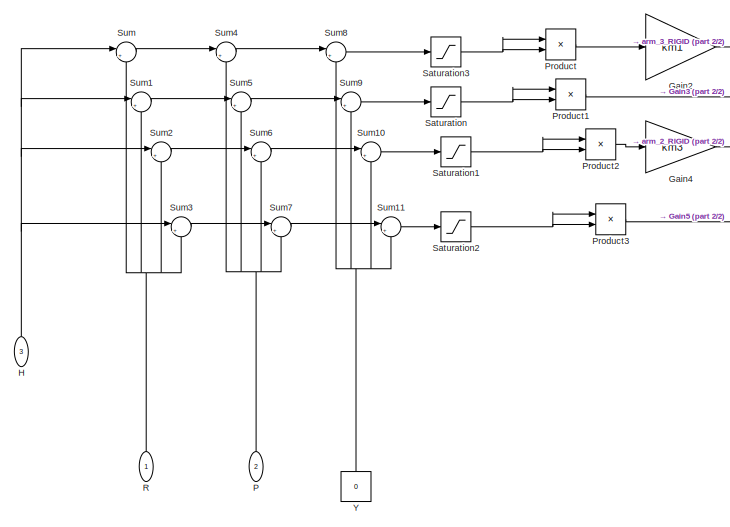
[diagram: root canvas - part 1/2, top left region]
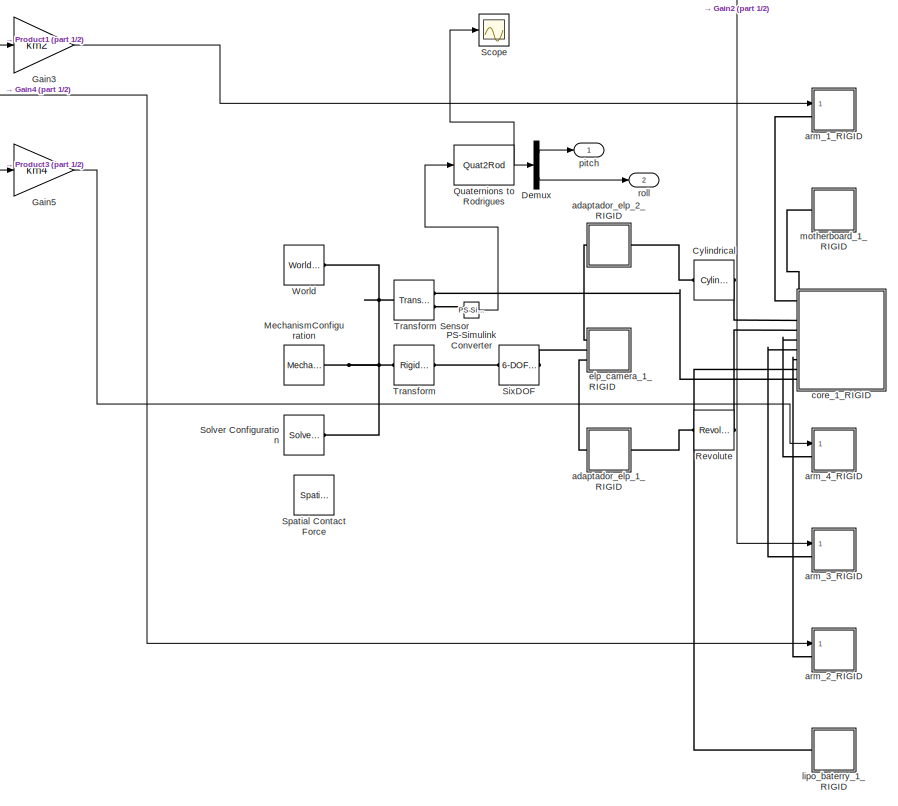
[diagram: root canvas - part 2/2, right side, full height]
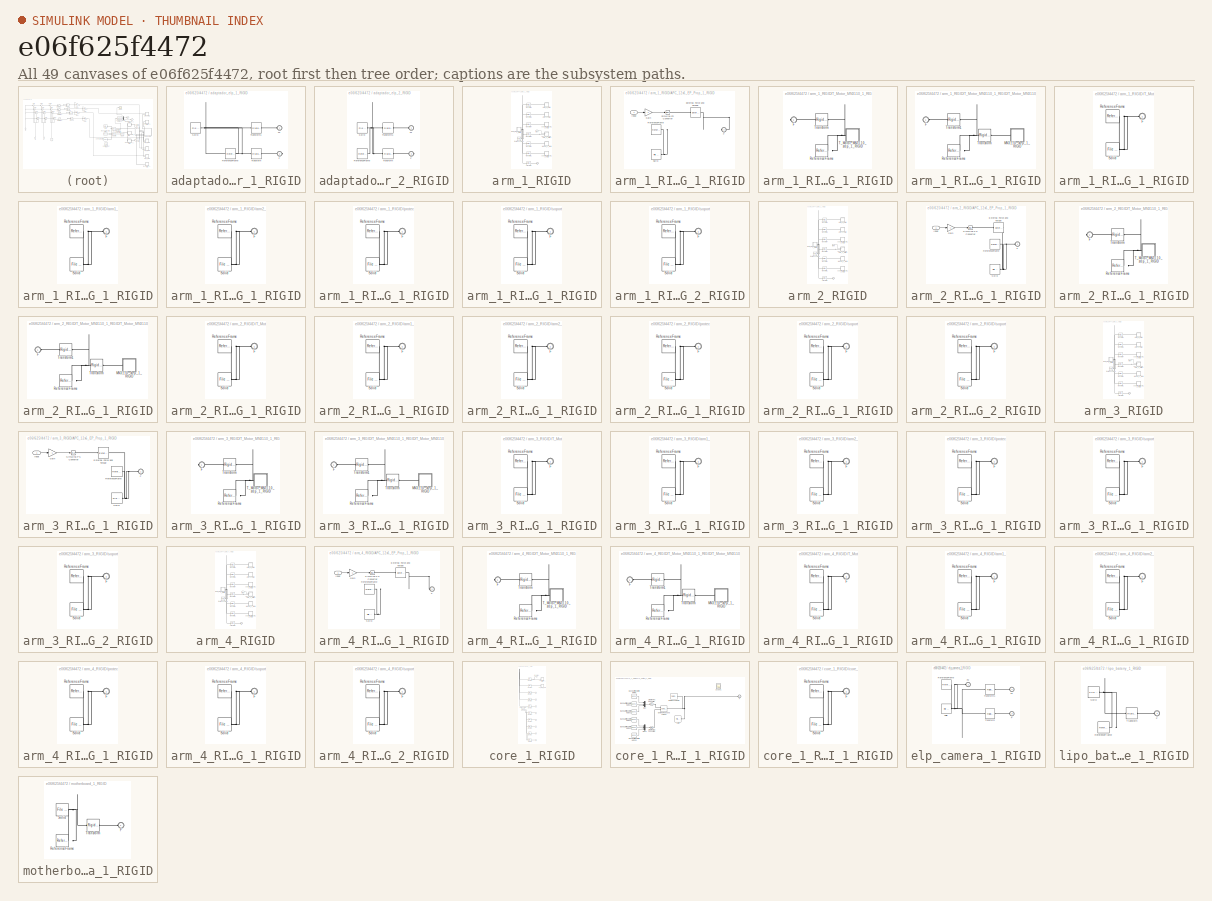
[diagram: thumbnail index - all 49 canvases of the model, root first then tree order]
MODEL slx_e06f625f4472
KIND model
CONFIG AbsTol = auto
CONFIG EnableMultiTasking = off
CONFIG FixedStep = auto
CONFIG MaxStep = auto
CONFIG MinStep = auto
CONFIG RelTol = 1e-3
CONFIG SampleTimeConstraint = Unconstrained
CONFIG Solver = VariableStepAuto
CONFIG SolverName = VariableStepAuto
CONFIG StartTime = 0.0
CONFIG StopTime = 10.0
WORKSPACE source: external: MATLAB File  (data not in archive)
BLOCK [Reference] Cylindrical  REF=sm_lib/Joints/Cylindrical
Joint
  Ports = [0, 0, 0, 0, 0, 1, 1]
  SourceBlock = sm_lib/Joints/Cylindrical\nJoint
  SourceProductBaseCode = MS
  SourceType = Cylindrical\nJoint
BLOCK [Demux] Demux
  Outputs = 3
  Ports = [1, 3]
BLOCK [Gain] Gain2
  Gain = km1
BLOCK [Gain] Gain3
  Gain = km2
BLOCK [Gain] Gain4
  Gain = km3
BLOCK [Gain] Gain5
  Gain = km4
BLOCK [Inport] H
  NameLocation = right
  Port = 3
BLOCK [Reference] MechanismConfiguration  REF=sm_lib/Utilities/Mechanism
Configuration
  Ports = [0, 0, 0, 0, 0, 0, 1]
  SourceBlock = sm_lib/Utilities/Mechanism\nConfiguration
  SourceProductBaseCode = MS
  SourceType = Mechanism\nConfiguration
BLOCK [Inport] P
  NameLocation = right
  Port = 2
BLOCK [Reference] PS-Simulink Converter  REF=nesl_utility/PS-Simulink
Converter
  Ports = [0, 1, 0, 0, 0, 1]
  SourceBlock = nesl_utility/PS-Simulink\nConverter
  SourceProductBaseCode = SS
  SourceType = PS-Simulink\nConverter
BLOCK [Product] Product
  Ports = [2, 1]
BLOCK [Product] Product1
  Ports = [2, 1]
BLOCK [Product] Product2
  Ports = [2, 1]
BLOCK [Product] Product3
  Ports = [2, 1]
BLOCK [Quat2Rod] Quaternions to Rodrigues
  Ports = [1, 1]
BLOCK [Inport] R
  NameLocation = right
BLOCK [Reference] Revolute  REF=sm_lib/Joints/Revolute Joint
  Ports = [0, 0, 0, 0, 0, 1, 1]
  SourceBlock = sm_lib/Joints/Revolute Joint
  SourceProductBaseCode = MS
  SourceType = Revolute Joint
BLOCK [Saturate] Saturation
  LowerLimit = -100
  UpperLimit = 100
BLOCK [Saturate] Saturation1
  LowerLimit = -100
  UpperLimit = 100
BLOCK [Saturate] Saturation2
  LowerLimit = -100
  UpperLimit = 100
BLOCK [Saturate] Saturation3
  LowerLimit = -100
  UpperLimit = 100
BLOCK [Scope] Scope
  Floating = off
  NumInputPorts = 1
  Ports = [1]
  ScopeSpecificationString = Simulink.scopes.TimeScopeBlockCfg('CurrentConfiguration', extmgr.ConfigurationSet(extmgr.Configuration('Core','General UI',true),extmgr.Configuration('Core','Source UI',true),extmgr.Configuration('Sources','WiredSimulink',true,'DataLoggingVariableName','ScopeData1'),extmgr.Configuration('Visuals','Time Domain',true,'SerializedDisplays',{struct('MinYLimReal','165189.636000515','MaxYLimReal','165189...<+1588ch>
BLOCK [Reference] SixDOF  REF=sm_lib/Joints/6-DOF Joint
  Ports = [0, 0, 0, 0, 0, 1, 1]
  SourceBlock = sm_lib/Joints/6-DOF Joint
  SourceProductBaseCode = MS
  SourceType = 6-DOF Joint
BLOCK [Reference] Solver Configuration  REF=nesl_utility/Solver
Configuration
  Ports = [0, 0, 0, 0, 0, 0, 1]
  SourceBlock = nesl_utility/Solver\nConfiguration
  SourceProductBaseCode = SS
  SourceType = Solver\nConfiguration
BLOCK [Reference] Spatial Contact Force  REF=sm_lib/Forces and
Torques/Spatial
Contact Force
  Ports = [0, 0, 0, 0, 0, 1, 1]
  SourceBlock = sm_lib/Forces and\nTorques/Spatial\nContact Force
  SourceProductBaseCode = MS
  SourceType = Spatial\nContact Force
BLOCK [Sum] Sum
  Inputs = |++
  Ports = [2, 1]
BLOCK [Sum] Sum1
  Inputs = |++
  Ports = [2, 1]
BLOCK [Sum] Sum10
  Inputs = |+-
  Ports = [2, 1]
BLOCK [Sum] Sum11
  Inputs = |++
  Ports = [2, 1]
BLOCK [Sum] Sum2
  Inputs = |+-
  Ports = [2, 1]
BLOCK [Sum] Sum3
  Inputs = |+-
  Ports = [2, 1]
BLOCK [Sum] Sum4
  Inputs = |++
  Ports = [2, 1]
BLOCK [Sum] Sum5
  Inputs = |+-
  Ports = [2, 1]
BLOCK [Sum] Sum6
  Inputs = |+-
  Ports = [2, 1]
BLOCK [Sum] Sum7
  Inputs = |++
  Ports = [2, 1]
BLOCK [Sum] Sum8
  Inputs = |+-
  Ports = [2, 1]
BLOCK [Sum] Sum9
  Inputs = |++
  Ports = [2, 1]
BLOCK [Reference] Transform  REF=sm_lib/Frames and
Transforms/Rigid
Transform
  Ports = [0, 0, 0, 0, 0, 1, 1]
  SourceBlock = sm_lib/Frames and\nTransforms/Rigid\nTransform
  SourceProductBaseCode = MS
  SourceType = Rigid\nTransform
BLOCK [Reference] Transform Sensor  REF=sm_lib/Frames and
Transforms/Transform
Sensor
  Ports = [0, 0, 0, 0, 0, 1, 2]
  SourceBlock = sm_lib/Frames and\nTransforms/Transform\nSensor
  SourceProductBaseCode = MS
  SourceType = Transform\nSensor
BLOCK [Reference] World  REF=sm_lib/Frames and
Transforms/World Frame
  Ports = [0, 0, 0, 0, 0, 0, 1]
  SourceBlock = sm_lib/Frames and\nTransforms/World Frame
  SourceProductBaseCode = MS
  SourceType = World Frame
BLOCK [Constant] Y
  NameLocation = right
  Value = 0
BLOCK [SubSystem] adaptador_elp_1_RIGID
  Ports = [0, 0, 0, 0, 0, 1, 1]
  RequestExecContextInheritance = off
BLOCK [PMIOPort] adaptador_elp_1_RIGID/F
  Port = 2
  Side = Right
BLOCK [PMIOPort] adaptador_elp_1_RIGID/F1
  Side = Left
BLOCK [Reference] adaptador_elp_1_RIGID/ReferenceFrame  REF=sm_lib/Frames and
Transforms/Reference
Frame
  Ports = [0, 0, 0, 0, 0, 0, 1]
  SourceBlock = sm_lib/Frames and\nTransforms/Reference\nFrame
  SourceProductBaseCode = MS
  SourceType = Reference\nFrame
BLOCK [Reference] adaptador_elp_1_RIGID/Solid  REF=sm_lib/Body Elements/File Solid
  Ports = [0, 0, 0, 0, 0, 0, 1]
  SourceBlock = sm_lib/Body Elements/File Solid
  SourceProductBaseCode = MS
  SourceType = File Solid
BLOCK [Reference] adaptador_elp_1_RIGID/Transform  REF=sm_lib/Frames and
Transforms/Rigid
Transform
  Ports = [0, 0, 0, 0, 0, 1, 1]
  SourceBlock = sm_lib/Frames and\nTransforms/Rigid\nTransform
  SourceProductBaseCode = MS
  SourceType = Rigid\nTransform
BLOCK [Reference] adaptador_elp_1_RIGID/Transform1  REF=sm_lib/Frames and
Transforms/Rigid
Transform
  Ports = [0, 0, 0, 0, 0, 1, 1]
  SourceBlock = sm_lib/Frames and\nTransforms/Rigid\nTransform
  SourceProductBaseCode = MS
  SourceType = Rigid\nTransform
BLOCK [SubSystem] adaptador_elp_2_RIGID
  Ports = [0, 0, 0, 0, 0, 1, 1]
  RequestExecContextInheritance = off
BLOCK [PMIOPort] adaptador_elp_2_RIGID/F
  Port = 2
  Side = Right
BLOCK [PMIOPort] adaptador_elp_2_RIGID/F1
  Side = Left
BLOCK [Reference] adaptador_elp_2_RIGID/ReferenceFrame  REF=sm_lib/Frames and
Transforms/Reference
Frame
  Ports = [0, 0, 0, 0, 0, 0, 1]
  SourceBlock = sm_lib/Frames and\nTransforms/Reference\nFrame
  SourceProductBaseCode = MS
  SourceType = Reference\nFrame
BLOCK [Reference] adaptador_elp_2_RIGID/Solid  REF=sm_lib/Body Elements/File Solid
  Ports = [0, 0, 0, 0, 0, 0, 1]
  SourceBlock = sm_lib/Body Elements/File Solid
  SourceProductBaseCode = MS
  SourceType = File Solid
BLOCK [Reference] adaptador_elp_2_RIGID/Transform  REF=sm_lib/Frames and
Transforms/Rigid
Transform
  Ports = [0, 0, 0, 0, 0, 1, 1]
  SourceBlock = sm_lib/Frames and\nTransforms/Rigid\nTransform
  SourceProductBaseCode = MS
  SourceType = Rigid\nTransform
BLOCK [Reference] adaptador_elp_2_RIGID/Transform1  REF=sm_lib/Frames and
Transforms/Rigid
Transform
  Ports = [0, 0, 0, 0, 0, 1, 1]
  SourceBlock = sm_lib/Frames and\nTransforms/Rigid\nTransform
  SourceProductBaseCode = MS
  SourceType = Rigid\nTransform
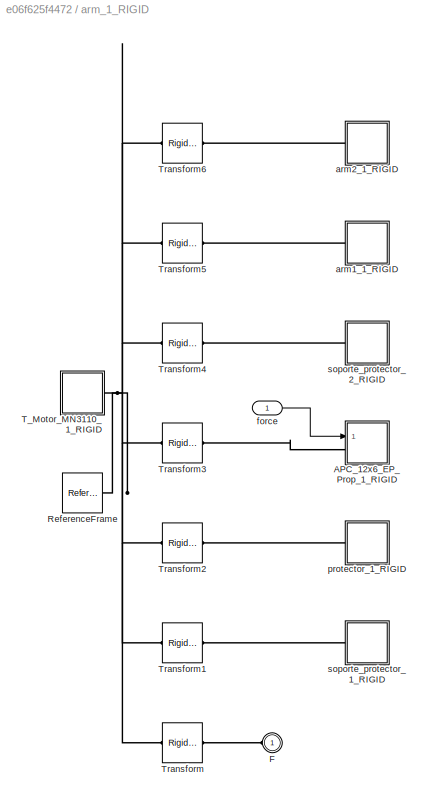
BLOCK [SubSystem] arm_1_RIGID
  Ports = [1, 0, 0, 0, 0, 1]
  RequestExecContextInheritance = off
BLOCK [SubSystem] arm_1_RIGID/APC_12x6_EP_Prop_1_RIGID
  Ports = [1, 0, 0, 0, 0, 1]
  RequestExecContextInheritance = off
BLOCK [Reference] arm_1_RIGID/APC_12x6_EP_Prop_1_RIGID/External Force and Torque  REF=sm_lib/Forces and
Torques/External Force
and Torque
  Ports = [0, 0, 0, 0, 0, 1, 1]
  SourceBlock = sm_lib/Forces and\nTorques/External Force\nand Torque
  SourceProductBaseCode = MS
  SourceType = External Force\nand Torque
BLOCK [PMIOPort] arm_1_RIGID/APC_12x6_EP_Prop_1_RIGID/F
  Side = Left
BLOCK [Gain] arm_1_RIGID/APC_12x6_EP_Prop_1_RIGID/Gain
  Gain = -1
BLOCK [Inport] arm_1_RIGID/APC_12x6_EP_Prop_1_RIGID/Input
BLOCK [Reference] arm_1_RIGID/APC_12x6_EP_Prop_1_RIGID/ReferenceFrame  REF=sm_lib/Frames and
Transforms/Reference
Frame
  Ports = [0, 0, 0, 0, 0, 0, 1]
  SourceBlock = sm_lib/Frames and\nTransforms/Reference\nFrame
  SourceProductBaseCode = MS
  SourceType = Reference\nFrame
BLOCK [Reference] arm_1_RIGID/APC_12x6_EP_Prop_1_RIGID/Simulink-PS Converter  REF=nesl_utility/Simulink-PS
Converter
  Ports = [1, 0, 0, 0, 0, 0, 1]
  SourceBlock = nesl_utility/Simulink-PS\nConverter
  SourceProductBaseCode = SS
  SourceType = Simulink-PS\nConverter
BLOCK [Reference] arm_1_RIGID/APC_12x6_EP_Prop_1_RIGID/Solid  REF=sm_lib/Body Elements/File Solid
  Ports = [0, 0, 0, 0, 0, 0, 1]
  SourceBlock = sm_lib/Body Elements/File Solid
  SourceProductBaseCode = MS
  SourceType = File Solid
BLOCK [PMIOPort] arm_1_RIGID/F
  Side = Left
BLOCK [Reference] arm_1_RIGID/ReferenceFrame  REF=sm_lib/Frames and
Transforms/Reference
Frame
  Ports = [0, 0, 0, 0, 0, 0, 1]
  SourceBlock = sm_lib/Frames and\nTransforms/Reference\nFrame
  SourceProductBaseCode = MS
  SourceType = Reference\nFrame
BLOCK [SubSystem] arm_1_RIGID/T_Motor_MN3110_1_RIGID
  Ports = [0, 0, 0, 0, 0, 0, 1]
  RequestExecContextInheritance = off
BLOCK [PMIOPort] arm_1_RIGID/T_Motor_MN3110_1_RIGID/F
  Side = Right
BLOCK [Reference] arm_1_RIGID/T_Motor_MN3110_1_RIGID/ReferenceFrame  REF=sm_lib/Frames and
Transforms/Reference
Frame
  Ports = [0, 0, 0, 0, 0, 0, 1]
  SourceBlock = sm_lib/Frames and\nTransforms/Reference\nFrame
  SourceProductBaseCode = MS
  SourceType = Reference\nFrame
BLOCK [SubSystem] arm_1_RIGID/T_Motor_MN3110_1_RIGID/T_Motor_MN3110_step_1_RIGID
  Ports = [0, 0, 0, 0, 0, 1]
  RequestExecContextInheritance = off
BLOCK [PMIOPort] arm_1_RIGID/T_Motor_MN3110_1_RIGID/T_Motor_MN3110_step_1_RIGID/F
  Side = Left
BLOCK [SubSystem] arm_1_RIGID/T_Motor_MN3110_1_RIGID/T_Motor_MN3110_step_1_RIGID/MN3110_step_1_RIGID
  Ports = [0, 0, 0, 0, 0, 1]
  RequestExecContextInheritance = off
BLOCK [PMIOPort] arm_1_RIGID/T_Motor_MN3110_1_RIGID/T_Motor_MN3110_step_1_RIGID/MN3110_step_1_RIGID/F
  Side = Left
BLOCK [Reference] arm_1_RIGID/T_Motor_MN3110_1_RIGID/T_Motor_MN3110_step_1_RIGID/MN3110_step_1_RIGID/ReferenceFrame  REF=sm_lib/Frames and
Transforms/Reference
Frame
  Ports = [0, 0, 0, 0, 0, 0, 1]
  SourceBlock = sm_lib/Frames and\nTransforms/Reference\nFrame
  SourceProductBaseCode = MS
  SourceType = Reference\nFrame
BLOCK [Reference] arm_1_RIGID/T_Motor_MN3110_1_RIGID/T_Motor_MN3110_step_1_RIGID/MN3110_step_1_RIGID/Solid  REF=sm_lib/Body Elements/File Solid
  Ports = [0, 0, 0, 0, 0, 0, 1]
  SourceBlock = sm_lib/Body Elements/File Solid
  SourceProductBaseCode = MS
  SourceType = File Solid
BLOCK [Reference] arm_1_RIGID/T_Motor_MN3110_1_RIGID/T_Motor_MN3110_step_1_RIGID/ReferenceFrame  REF=sm_lib/Frames and
Transforms/Reference
Frame
  Ports = [0, 0, 0, 0, 0, 0, 1]
  SourceBlock = sm_lib/Frames and\nTransforms/Reference\nFrame
  SourceProductBaseCode = MS
  SourceType = Reference\nFrame
BLOCK [Reference] arm_1_RIGID/T_Motor_MN3110_1_RIGID/T_Motor_MN3110_step_1_RIGID/Transform  REF=sm_lib/Frames and
Transforms/Rigid
Transform
  Ports = [0, 0, 0, 0, 0, 1, 1]
  SourceBlock = sm_lib/Frames and\nTransforms/Rigid\nTransform
  SourceProductBaseCode = MS
  SourceType = Rigid\nTransform
BLOCK [Reference] arm_1_RIGID/T_Motor_MN3110_1_RIGID/T_Motor_MN3110_step_1_RIGID/Transform1  REF=sm_lib/Frames and
Transforms/Rigid
Transform
  Ports = [0, 0, 0, 0, 0, 1, 1]
  SourceBlock = sm_lib/Frames and\nTransforms/Rigid\nTransform
  SourceProductBaseCode = MS
  SourceType = Rigid\nTransform
BLOCK [Reference] arm_1_RIGID/T_Motor_MN3110_1_RIGID/Transform  REF=sm_lib/Frames and
Transforms/Rigid
Transform
  Ports = [0, 0, 0, 0, 0, 1, 1]
  SourceBlock = sm_lib/Frames and\nTransforms/Rigid\nTransform
  SourceProductBaseCode = MS
  SourceType = Rigid\nTransform
BLOCK [Reference] arm_1_RIGID/Transform  REF=sm_lib/Frames and
Transforms/Rigid
Transform
  Ports = [0, 0, 0, 0, 0, 1, 1]
  SourceBlock = sm_lib/Frames and\nTransforms/Rigid\nTransform
  SourceProductBaseCode = MS
  SourceType = Rigid\nTransform
BLOCK [Reference] arm_1_RIGID/Transform1  REF=sm_lib/Frames and
Transforms/Rigid
Transform
  Ports = [0, 0, 0, 0, 0, 1, 1]
  SourceBlock = sm_lib/Frames and\nTransforms/Rigid\nTransform
  SourceProductBaseCode = MS
  SourceType = Rigid\nTransform
BLOCK [Reference] arm_1_RIGID/Transform2  REF=sm_lib/Frames and
Transforms/Rigid
Transform
  Ports = [0, 0, 0, 0, 0, 1, 1]
  SourceBlock = sm_lib/Frames and\nTransforms/Rigid\nTransform
  SourceProductBaseCode = MS
  SourceType = Rigid\nTransform
BLOCK [Reference] arm_1_RIGID/Transform3  REF=sm_lib/Frames and
Transforms/Rigid
Transform
  Ports = [0, 0, 0, 0, 0, 1, 1]
  SourceBlock = sm_lib/Frames and\nTransforms/Rigid\nTransform
  SourceProductBaseCode = MS
  SourceType = Rigid\nTransform
BLOCK [Reference] arm_1_RIGID/Transform4  REF=sm_lib/Frames and
Transforms/Rigid
Transform
  Ports = [0, 0, 0, 0, 0, 1, 1]
  SourceBlock = sm_lib/Frames and\nTransforms/Rigid\nTransform
  SourceProductBaseCode = MS
  SourceType = Rigid\nTransform
BLOCK [Reference] arm_1_RIGID/Transform5  REF=sm_lib/Frames and
Transforms/Rigid
Transform
  Ports = [0, 0, 0, 0, 0, 1, 1]
  SourceBlock = sm_lib/Frames and\nTransforms/Rigid\nTransform
  SourceProductBaseCode = MS
  SourceType = Rigid\nTransform
BLOCK [Reference] arm_1_RIGID/Transform6  REF=sm_lib/Frames and
Transforms/Rigid
Transform
  Ports = [0, 0, 0, 0, 0, 1, 1]
  SourceBlock = sm_lib/Frames and\nTransforms/Rigid\nTransform
  SourceProductBaseCode = MS
  SourceType = Rigid\nTransform
BLOCK [SubSystem] arm_1_RIGID/arm1_1_RIGID
  Ports = [0, 0, 0, 0, 0, 1]
  RequestExecContextInheritance = off
BLOCK [PMIOPort] arm_1_RIGID/arm1_1_RIGID/F
  Side = Left
BLOCK [Reference] arm_1_RIGID/arm1_1_RIGID/ReferenceFrame  REF=sm_lib/Frames and
Transforms/Reference
Frame
  Ports = [0, 0, 0, 0, 0, 0, 1]
  SourceBlock = sm_lib/Frames and\nTransforms/Reference\nFrame
  SourceProductBaseCode = MS
  SourceType = Reference\nFrame
BLOCK [Reference] arm_1_RIGID/arm1_1_RIGID/Solid  REF=sm_lib/Body Elements/File Solid
  Ports = [0, 0, 0, 0, 0, 0, 1]
  SourceBlock = sm_lib/Body Elements/File Solid
  SourceProductBaseCode = MS
  SourceType = File Solid
BLOCK [SubSystem] arm_1_RIGID/arm2_1_RIGID
  Ports = [0, 0, 0, 0, 0, 1]
  RequestExecContextInheritance = off
BLOCK [PMIOPort] arm_1_RIGID/arm2_1_RIGID/F
  Side = Left
BLOCK [Reference] arm_1_RIGID/arm2_1_RIGID/ReferenceFrame  REF=sm_lib/Frames and
Transforms/Reference
Frame
  Ports = [0, 0, 0, 0, 0, 0, 1]
  SourceBlock = sm_lib/Frames and\nTransforms/Reference\nFrame
  SourceProductBaseCode = MS
  SourceType = Reference\nFrame
BLOCK [Reference] arm_1_RIGID/arm2_1_RIGID/Solid  REF=sm_lib/Body Elements/File Solid
  Ports = [0, 0, 0, 0, 0, 0, 1]
  SourceBlock = sm_lib/Body Elements/File Solid
  SourceProductBaseCode = MS
  SourceType = File Solid
BLOCK [Inport] arm_1_RIGID/force
BLOCK [SubSystem] arm_1_RIGID/protector_1_RIGID
  Ports = [0, 0, 0, 0, 0, 1]
  RequestExecContextInheritance = off
BLOCK [PMIOPort] arm_1_RIGID/protector_1_RIGID/F
  Side = Left
BLOCK [Reference] arm_1_RIGID/protector_1_RIGID/ReferenceFrame  REF=sm_lib/Frames and
Transforms/Reference
Frame
  Ports = [0, 0, 0, 0, 0, 0, 1]
  SourceBlock = sm_lib/Frames and\nTransforms/Reference\nFrame
  SourceProductBaseCode = MS
  SourceType = Reference\nFrame
BLOCK [Reference] arm_1_RIGID/protector_1_RIGID/Solid  REF=sm_lib/Body Elements/File Solid
  Ports = [0, 0, 0, 0, 0, 0, 1]
  SourceBlock = sm_lib/Body Elements/File Solid
  SourceProductBaseCode = MS
  SourceType = File Solid
BLOCK [SubSystem] arm_1_RIGID/soporte_protector_1_RIGID
  Ports = [0, 0, 0, 0, 0, 1]
  RequestExecContextInheritance = off
BLOCK [PMIOPort] arm_1_RIGID/soporte_protector_1_RIGID/F
  Side = Left
BLOCK [Reference] arm_1_RIGID/soporte_protector_1_RIGID/ReferenceFrame  REF=sm_lib/Frames and
Transforms/Reference
Frame
  Ports = [0, 0, 0, 0, 0, 0, 1]
  SourceBlock = sm_lib/Frames and\nTransforms/Reference\nFrame
  SourceProductBaseCode = MS
  SourceType = Reference\nFrame
BLOCK [Reference] arm_1_RIGID/soporte_protector_1_RIGID/Solid  REF=sm_lib/Body Elements/File Solid
  Ports = [0, 0, 0, 0, 0, 0, 1]
  SourceBlock = sm_lib/Body Elements/File Solid
  SourceProductBaseCode = MS
  SourceType = File Solid
BLOCK [SubSystem] arm_1_RIGID/soporte_protector_2_RIGID
  Ports = [0, 0, 0, 0, 0, 1]
  RequestExecContextInheritance = off
BLOCK [PMIOPort] arm_1_RIGID/soporte_protector_2_RIGID/F
  Side = Left
BLOCK [Reference] arm_1_RIGID/soporte_protector_2_RIGID/ReferenceFrame  REF=sm_lib/Frames and
Transforms/Reference
Frame
  Ports = [0, 0, 0, 0, 0, 0, 1]
  SourceBlock = sm_lib/Frames and\nTransforms/Reference\nFrame
  SourceProductBaseCode = MS
  SourceType = Reference\nFrame
BLOCK [Reference] arm_1_RIGID/soporte_protector_2_RIGID/Solid  REF=sm_lib/Body Elements/File Solid
  Ports = [0, 0, 0, 0, 0, 0, 1]
  SourceBlock = sm_lib/Body Elements/File Solid
  SourceProductBaseCode = MS
  SourceType = File Solid
BLOCK [SubSystem] arm_2_RIGID
  Ports = [1, 0, 0, 0, 0, 1]
  RequestExecContextInheritance = off
BLOCK [SubSystem] arm_2_RIGID/APC_12x6_EP_Prop_1_RIGID
  Ports = [1, 0, 0, 0, 0, 1]
  RequestExecContextInheritance = off
BLOCK [Reference] arm_2_RIGID/APC_12x6_EP_Prop_1_RIGID/External Force and Torque  REF=sm_lib/Forces and
Torques/External Force
and Torque
  Ports = [0, 0, 0, 0, 0, 1, 1]
  SourceBlock = sm_lib/Forces and\nTorques/External Force\nand Torque
  SourceProductBaseCode = MS
  SourceType = External Force\nand Torque
BLOCK [PMIOPort] arm_2_RIGID/APC_12x6_EP_Prop_1_RIGID/F
  Side = Left
BLOCK [Gain] arm_2_RIGID/APC_12x6_EP_Prop_1_RIGID/Gain
  Gain = -1
BLOCK [Inport] arm_2_RIGID/APC_12x6_EP_Prop_1_RIGID/Input
BLOCK [Reference] arm_2_RIGID/APC_12x6_EP_Prop_1_RIGID/ReferenceFrame  REF=sm_lib/Frames and
Transforms/Reference
Frame
  Ports = [0, 0, 0, 0, 0, 0, 1]
  SourceBlock = sm_lib/Frames and\nTransforms/Reference\nFrame
  SourceProductBaseCode = MS
  SourceType = Reference\nFrame
BLOCK [Reference] arm_2_RIGID/APC_12x6_EP_Prop_1_RIGID/Simulink-PS Converter  REF=nesl_utility/Simulink-PS
Converter
  Ports = [1, 0, 0, 0, 0, 0, 1]
  SourceBlock = nesl_utility/Simulink-PS\nConverter
  SourceProductBaseCode = SS
  SourceType = Simulink-PS\nConverter
BLOCK [Reference] arm_2_RIGID/APC_12x6_EP_Prop_1_RIGID/Solid  REF=sm_lib/Body Elements/File Solid
  Ports = [0, 0, 0, 0, 0, 0, 1]
  SourceBlock = sm_lib/Body Elements/File Solid
  SourceProductBaseCode = MS
  SourceType = File Solid
BLOCK [PMIOPort] arm_2_RIGID/F
  Side = Left
BLOCK [Reference] arm_2_RIGID/ReferenceFrame  REF=sm_lib/Frames and
Transforms/Reference
Frame
  Ports = [0, 0, 0, 0, 0, 0, 1]
  SourceBlock = sm_lib/Frames and\nTransforms/Reference\nFrame
  SourceProductBaseCode = MS
  SourceType = Reference\nFrame
BLOCK [SubSystem] arm_2_RIGID/T_Motor_MN3110_1_RIGID
  Ports = [0, 0, 0, 0, 0, 0, 1]
  RequestExecContextInheritance = off
BLOCK [PMIOPort] arm_2_RIGID/T_Motor_MN3110_1_RIGID/F
  Side = Right
BLOCK [Reference] arm_2_RIGID/T_Motor_MN3110_1_RIGID/ReferenceFrame  REF=sm_lib/Frames and
Transforms/Reference
Frame
  Ports = [0, 0, 0, 0, 0, 0, 1]
  SourceBlock = sm_lib/Frames and\nTransforms/Reference\nFrame
  SourceProductBaseCode = MS
  SourceType = Reference\nFrame
BLOCK [SubSystem] arm_2_RIGID/T_Motor_MN3110_1_RIGID/T_Motor_MN3110_step_1_RIGID
  Ports = [0, 0, 0, 0, 0, 1]
  RequestExecContextInheritance = off
BLOCK [PMIOPort] arm_2_RIGID/T_Motor_MN3110_1_RIGID/T_Motor_MN3110_step_1_RIGID/F
  Side = Left
BLOCK [SubSystem] arm_2_RIGID/T_Motor_MN3110_1_RIGID/T_Motor_MN3110_step_1_RIGID/MN3110_step_1_RIGID
  Ports = [0, 0, 0, 0, 0, 1]
  RequestExecContextInheritance = off
BLOCK [PMIOPort] arm_2_RIGID/T_Motor_MN3110_1_RIGID/T_Motor_MN3110_step_1_RIGID/MN3110_step_1_RIGID/F
  Side = Left
BLOCK [Reference] arm_2_RIGID/T_Motor_MN3110_1_RIGID/T_Motor_MN3110_step_1_RIGID/MN3110_step_1_RIGID/ReferenceFrame  REF=sm_lib/Frames and
Transforms/Reference
Frame
  Ports = [0, 0, 0, 0, 0, 0, 1]
  SourceBlock = sm_lib/Frames and\nTransforms/Reference\nFrame
  SourceProductBaseCode = MS
  SourceType = Reference\nFrame
BLOCK [Reference] arm_2_RIGID/T_Motor_MN3110_1_RIGID/T_Motor_MN3110_step_1_RIGID/MN3110_step_1_RIGID/Solid  REF=sm_lib/Body Elements/File Solid
  Ports = [0, 0, 0, 0, 0, 0, 1]
  SourceBlock = sm_lib/Body Elements/File Solid
  SourceProductBaseCode = MS
  SourceType = File Solid
BLOCK [Reference] arm_2_RIGID/T_Motor_MN3110_1_RIGID/T_Motor_MN3110_step_1_RIGID/ReferenceFrame  REF=sm_lib/Frames and
Transforms/Reference
Frame
  Ports = [0, 0, 0, 0, 0, 0, 1]
  SourceBlock = sm_lib/Frames and\nTransforms/Reference\nFrame
  SourceProductBaseCode = MS
  SourceType = Reference\nFrame
BLOCK [Reference] arm_2_RIGID/T_Motor_MN3110_1_RIGID/T_Motor_MN3110_step_1_RIGID/Transform  REF=sm_lib/Frames and
Transforms/Rigid
Transform
  Ports = [0, 0, 0, 0, 0, 1, 1]
  SourceBlock = sm_lib/Frames and\nTransforms/Rigid\nTransform
  SourceProductBaseCode = MS
  SourceType = Rigid\nTransform
BLOCK [Reference] arm_2_RIGID/T_Motor_MN3110_1_RIGID/T_Motor_MN3110_step_1_RIGID/Transform1  REF=sm_lib/Frames and
Transforms/Rigid
Transform
  Ports = [0, 0, 0, 0, 0, 1, 1]
  SourceBlock = sm_lib/Frames and\nTransforms/Rigid\nTransform
  SourceProductBaseCode = MS
  SourceType = Rigid\nTransform
BLOCK [Reference] arm_2_RIGID/T_Motor_MN3110_1_RIGID/Transform  REF=sm_lib/Frames and
Transforms/Rigid
Transform
  Ports = [0, 0, 0, 0, 0, 1, 1]
  SourceBlock = sm_lib/Frames and\nTransforms/Rigid\nTransform
  SourceProductBaseCode = MS
  SourceType = Rigid\nTransform
BLOCK [Reference] arm_2_RIGID/Transform  REF=sm_lib/Frames and
Transforms/Rigid
Transform
  Ports = [0, 0, 0, 0, 0, 1, 1]
  SourceBlock = sm_lib/Frames and\nTransforms/Rigid\nTransform
  SourceProductBaseCode = MS
  SourceType = Rigid\nTransform
BLOCK [Reference] arm_2_RIGID/Transform1  REF=sm_lib/Frames and
Transforms/Rigid
Transform
  Ports = [0, 0, 0, 0, 0, 1, 1]
  SourceBlock = sm_lib/Frames and\nTransforms/Rigid\nTransform
  SourceProductBaseCode = MS
  SourceType = Rigid\nTransform
BLOCK [Reference] arm_2_RIGID/Transform2  REF=sm_lib/Frames and
Transforms/Rigid
Transform
  Ports = [0, 0, 0, 0, 0, 1, 1]
  SourceBlock = sm_lib/Frames and\nTransforms/Rigid\nTransform
  SourceProductBaseCode = MS
  SourceType = Rigid\nTransform
BLOCK [Reference] arm_2_RIGID/Transform3  REF=sm_lib/Frames and
Transforms/Rigid
Transform
  Ports = [0, 0, 0, 0, 0, 1, 1]
  SourceBlock = sm_lib/Frames and\nTransforms/Rigid\nTransform
  SourceProductBaseCode = MS
  SourceType = Rigid\nTransform
BLOCK [Reference] arm_2_RIGID/Transform4  REF=sm_lib/Frames and
Transforms/Rigid
Transform
  Ports = [0, 0, 0, 0, 0, 1, 1]
  SourceBlock = sm_lib/Frames and\nTransforms/Rigid\nTransform
  SourceProductBaseCode = MS
  SourceType = Rigid\nTransform
BLOCK [Reference] arm_2_RIGID/Transform5  REF=sm_lib/Frames and
Transforms/Rigid
Transform
  Ports = [0, 0, 0, 0, 0, 1, 1]
  SourceBlock = sm_lib/Frames and\nTransforms/Rigid\nTransform
  SourceProductBaseCode = MS
  SourceType = Rigid\nTransform
BLOCK [Reference] arm_2_RIGID/Transform6  REF=sm_lib/Frames and
Transforms/Rigid
Transform
  Ports = [0, 0, 0, 0, 0, 1, 1]
  SourceBlock = sm_lib/Frames and\nTransforms/Rigid\nTransform
  SourceProductBaseCode = MS
  SourceType = Rigid\nTransform
BLOCK [SubSystem] arm_2_RIGID/arm1_1_RIGID
  Ports = [0, 0, 0, 0, 0, 1]
  RequestExecContextInheritance = off
BLOCK [PMIOPort] arm_2_RIGID/arm1_1_RIGID/F
  Side = Left
BLOCK [Reference] arm_2_RIGID/arm1_1_RIGID/ReferenceFrame  REF=sm_lib/Frames and
Transforms/Reference
Frame
  Ports = [0, 0, 0, 0, 0, 0, 1]
  SourceBlock = sm_lib/Frames and\nTransforms/Reference\nFrame
  SourceProductBaseCode = MS
  SourceType = Reference\nFrame
BLOCK [Reference] arm_2_RIGID/arm1_1_RIGID/Solid  REF=sm_lib/Body Elements/File Solid
  Ports = [0, 0, 0, 0, 0, 0, 1]
  SourceBlock = sm_lib/Body Elements/File Solid
  SourceProductBaseCode = MS
  SourceType = File Solid
BLOCK [SubSystem] arm_2_RIGID/arm2_1_RIGID
  Ports = [0, 0, 0, 0, 0, 1]
  RequestExecContextInheritance = off
BLOCK [PMIOPort] arm_2_RIGID/arm2_1_RIGID/F
  Side = Left
BLOCK [Reference] arm_2_RIGID/arm2_1_RIGID/ReferenceFrame  REF=sm_lib/Frames and
Transforms/Reference
Frame
  Ports = [0, 0, 0, 0, 0, 0, 1]
  SourceBlock = sm_lib/Frames and\nTransforms/Reference\nFrame
  SourceProductBaseCode = MS
  SourceType = Reference\nFrame
BLOCK [Reference] arm_2_RIGID/arm2_1_RIGID/Solid  REF=sm_lib/Body Elements/File Solid
  Ports = [0, 0, 0, 0, 0, 0, 1]
  SourceBlock = sm_lib/Body Elements/File Solid
  SourceProductBaseCode = MS
  SourceType = File Solid
BLOCK [Inport] arm_2_RIGID/force
BLOCK [SubSystem] arm_2_RIGID/protector_1_RIGID
  Ports = [0, 0, 0, 0, 0, 1]
  RequestExecContextInheritance = off
BLOCK [PMIOPort] arm_2_RIGID/protector_1_RIGID/F
  Side = Left
BLOCK [Reference] arm_2_RIGID/protector_1_RIGID/ReferenceFrame  REF=sm_lib/Frames and
Transforms/Reference
Frame
  Ports = [0, 0, 0, 0, 0, 0, 1]
  SourceBlock = sm_lib/Frames and\nTransforms/Reference\nFrame
  SourceProductBaseCode = MS
  SourceType = Reference\nFrame
BLOCK [Reference] arm_2_RIGID/protector_1_RIGID/Solid  REF=sm_lib/Body Elements/File Solid
  Ports = [0, 0, 0, 0, 0, 0, 1]
  SourceBlock = sm_lib/Body Elements/File Solid
  SourceProductBaseCode = MS
  SourceType = File Solid
BLOCK [SubSystem] arm_2_RIGID/soporte_protector_1_RIGID
  Ports = [0, 0, 0, 0, 0, 1]
  RequestExecContextInheritance = off
BLOCK [PMIOPort] arm_2_RIGID/soporte_protector_1_RIGID/F
  Side = Left
BLOCK [Reference] arm_2_RIGID/soporte_protector_1_RIGID/ReferenceFrame  REF=sm_lib/Frames and
Transforms/Reference
Frame
  Ports = [0, 0, 0, 0, 0, 0, 1]
  SourceBlock = sm_lib/Frames and\nTransforms/Reference\nFrame
  SourceProductBaseCode = MS
  SourceType = Reference\nFrame
BLOCK [Reference] arm_2_RIGID/soporte_protector_1_RIGID/Solid  REF=sm_lib/Body Elements/File Solid
  Ports = [0, 0, 0, 0, 0, 0, 1]
  SourceBlock = sm_lib/Body Elements/File Solid
  SourceProductBaseCode = MS
  SourceType = File Solid
BLOCK [SubSystem] arm_2_RIGID/soporte_protector_2_RIGID
  Ports = [0, 0, 0, 0, 0, 1]
  RequestExecContextInheritance = off
BLOCK [PMIOPort] arm_2_RIGID/soporte_protector_2_RIGID/F
  Side = Left
BLOCK [Reference] arm_2_RIGID/soporte_protector_2_RIGID/ReferenceFrame  REF=sm_lib/Frames and
Transforms/Reference
Frame
  Ports = [0, 0, 0, 0, 0, 0, 1]
  SourceBlock = sm_lib/Frames and\nTransforms/Reference\nFrame
  SourceProductBaseCode = MS
  SourceType = Reference\nFrame
BLOCK [Reference] arm_2_RIGID/soporte_protector_2_RIGID/Solid  REF=sm_lib/Body Elements/File Solid
  Ports = [0, 0, 0, 0, 0, 0, 1]
  SourceBlock = sm_lib/Body Elements/File Solid
  SourceProductBaseCode = MS
  SourceType = File Solid
BLOCK [SubSystem] arm_3_RIGID
  Ports = [1, 0, 0, 0, 0, 1]
  RequestExecContextInheritance = off
BLOCK [SubSystem] arm_3_RIGID/APC_12x6_EP_Prop_1_RIGID
  Ports = [1, 0, 0, 0, 0, 1]
  RequestExecContextInheritance = off
BLOCK [Reference] arm_3_RIGID/APC_12x6_EP_Prop_1_RIGID/External Force and Torque  REF=sm_lib/Forces and
Torques/External Force
and Torque
  Ports = [0, 0, 0, 0, 0, 1, 1]
  SourceBlock = sm_lib/Forces and\nTorques/External Force\nand Torque
  SourceProductBaseCode = MS
  SourceType = External Force\nand Torque
BLOCK [PMIOPort] arm_3_RIGID/APC_12x6_EP_Prop_1_RIGID/F
  Side = Left
BLOCK [Gain] arm_3_RIGID/APC_12x6_EP_Prop_1_RIGID/Gain
  Gain = -1
BLOCK [Inport] arm_3_RIGID/APC_12x6_EP_Prop_1_RIGID/Input
BLOCK [Reference] arm_3_RIGID/APC_12x6_EP_Prop_1_RIGID/ReferenceFrame  REF=sm_lib/Frames and
Transforms/Reference
Frame
  Ports = [0, 0, 0, 0, 0, 0, 1]
  SourceBlock = sm_lib/Frames and\nTransforms/Reference\nFrame
  SourceProductBaseCode = MS
  SourceType = Reference\nFrame
BLOCK [Reference] arm_3_RIGID/APC_12x6_EP_Prop_1_RIGID/Simulink-PS Converter  REF=nesl_utility/Simulink-PS
Converter
  Ports = [1, 0, 0, 0, 0, 0, 1]
  SourceBlock = nesl_utility/Simulink-PS\nConverter
  SourceProductBaseCode = SS
  SourceType = Simulink-PS\nConverter
BLOCK [Reference] arm_3_RIGID/APC_12x6_EP_Prop_1_RIGID/Solid  REF=sm_lib/Body Elements/File Solid
  Ports = [0, 0, 0, 0, 0, 0, 1]
  SourceBlock = sm_lib/Body Elements/File Solid
  SourceProductBaseCode = MS
  SourceType = File Solid
BLOCK [PMIOPort] arm_3_RIGID/F
  Side = Left
BLOCK [Reference] arm_3_RIGID/ReferenceFrame  REF=sm_lib/Frames and
Transforms/Reference
Frame
  Ports = [0, 0, 0, 0, 0, 0, 1]
  SourceBlock = sm_lib/Frames and\nTransforms/Reference\nFrame
  SourceProductBaseCode = MS
  SourceType = Reference\nFrame
BLOCK [SubSystem] arm_3_RIGID/T_Motor_MN3110_1_RIGID
  Ports = [0, 0, 0, 0, 0, 0, 1]
  RequestExecContextInheritance = off
BLOCK [PMIOPort] arm_3_RIGID/T_Motor_MN3110_1_RIGID/F
  Side = Right
BLOCK [Reference] arm_3_RIGID/T_Motor_MN3110_1_RIGID/ReferenceFrame  REF=sm_lib/Frames and
Transforms/Reference
Frame
  Ports = [0, 0, 0, 0, 0, 0, 1]
  SourceBlock = sm_lib/Frames and\nTransforms/Reference\nFrame
  SourceProductBaseCode = MS
  SourceType = Reference\nFrame
BLOCK [SubSystem] arm_3_RIGID/T_Motor_MN3110_1_RIGID/T_Motor_MN3110_step_1_RIGID
  Ports = [0, 0, 0, 0, 0, 1]
  RequestExecContextInheritance = off
BLOCK [PMIOPort] arm_3_RIGID/T_Motor_MN3110_1_RIGID/T_Motor_MN3110_step_1_RIGID/F
  Side = Left
BLOCK [SubSystem] arm_3_RIGID/T_Motor_MN3110_1_RIGID/T_Motor_MN3110_step_1_RIGID/MN3110_step_1_RIGID
  Ports = [0, 0, 0, 0, 0, 1]
  RequestExecContextInheritance = off
BLOCK [PMIOPort] arm_3_RIGID/T_Motor_MN3110_1_RIGID/T_Motor_MN3110_step_1_RIGID/MN3110_step_1_RIGID/F
  Side = Left
BLOCK [Reference] arm_3_RIGID/T_Motor_MN3110_1_RIGID/T_Motor_MN3110_step_1_RIGID/MN3110_step_1_RIGID/ReferenceFrame  REF=sm_lib/Frames and
Transforms/Reference
Frame
  Ports = [0, 0, 0, 0, 0, 0, 1]
  SourceBlock = sm_lib/Frames and\nTransforms/Reference\nFrame
  SourceProductBaseCode = MS
  SourceType = Reference\nFrame
BLOCK [Reference] arm_3_RIGID/T_Motor_MN3110_1_RIGID/T_Motor_MN3110_step_1_RIGID/MN3110_step_1_RIGID/Solid  REF=sm_lib/Body Elements/File Solid
  Ports = [0, 0, 0, 0, 0, 0, 1]
  SourceBlock = sm_lib/Body Elements/File Solid
  SourceProductBaseCode = MS
  SourceType = File Solid
BLOCK [Reference] arm_3_RIGID/T_Motor_MN3110_1_RIGID/T_Motor_MN3110_step_1_RIGID/ReferenceFrame  REF=sm_lib/Frames and
Transforms/Reference
Frame
  Ports = [0, 0, 0, 0, 0, 0, 1]
  SourceBlock = sm_lib/Frames and\nTransforms/Reference\nFrame
  SourceProductBaseCode = MS
  SourceType = Reference\nFrame
BLOCK [Reference] arm_3_RIGID/T_Motor_MN3110_1_RIGID/T_Motor_MN3110_step_1_RIGID/Transform  REF=sm_lib/Frames and
Transforms/Rigid
Transform
  Ports = [0, 0, 0, 0, 0, 1, 1]
  SourceBlock = sm_lib/Frames and\nTransforms/Rigid\nTransform
  SourceProductBaseCode = MS
  SourceType = Rigid\nTransform
BLOCK [Reference] arm_3_RIGID/T_Motor_MN3110_1_RIGID/T_Motor_MN3110_step_1_RIGID/Transform1  REF=sm_lib/Frames and
Transforms/Rigid
Transform
  Ports = [0, 0, 0, 0, 0, 1, 1]
  SourceBlock = sm_lib/Frames and\nTransforms/Rigid\nTransform
  SourceProductBaseCode = MS
  SourceType = Rigid\nTransform
BLOCK [Reference] arm_3_RIGID/T_Motor_MN3110_1_RIGID/Transform  REF=sm_lib/Frames and
Transforms/Rigid
Transform
  Ports = [0, 0, 0, 0, 0, 1, 1]
  SourceBlock = sm_lib/Frames and\nTransforms/Rigid\nTransform
  SourceProductBaseCode = MS
  SourceType = Rigid\nTransform
BLOCK [Reference] arm_3_RIGID/Transform  REF=sm_lib/Frames and
Transforms/Rigid
Transform
  Ports = [0, 0, 0, 0, 0, 1, 1]
  SourceBlock = sm_lib/Frames and\nTransforms/Rigid\nTransform
  SourceProductBaseCode = MS
  SourceType = Rigid\nTransform
BLOCK [Reference] arm_3_RIGID/Transform1  REF=sm_lib/Frames and
Transforms/Rigid
Transform
  Ports = [0, 0, 0, 0, 0, 1, 1]
  SourceBlock = sm_lib/Frames and\nTransforms/Rigid\nTransform
  SourceProductBaseCode = MS
  SourceType = Rigid\nTransform
BLOCK [Reference] arm_3_RIGID/Transform2  REF=sm_lib/Frames and
Transforms/Rigid
Transform
  Ports = [0, 0, 0, 0, 0, 1, 1]
  SourceBlock = sm_lib/Frames and\nTransforms/Rigid\nTransform
  SourceProductBaseCode = MS
  SourceType = Rigid\nTransform
BLOCK [Reference] arm_3_RIGID/Transform3  REF=sm_lib/Frames and
Transforms/Rigid
Transform
  Ports = [0, 0, 0, 0, 0, 1, 1]
  SourceBlock = sm_lib/Frames and\nTransforms/Rigid\nTransform
  SourceProductBaseCode = MS
  SourceType = Rigid\nTransform
BLOCK [Reference] arm_3_RIGID/Transform4  REF=sm_lib/Frames and
Transforms/Rigid
Transform
  Ports = [0, 0, 0, 0, 0, 1, 1]
  SourceBlock = sm_lib/Frames and\nTransforms/Rigid\nTransform
  SourceProductBaseCode = MS
  SourceType = Rigid\nTransform
BLOCK [Reference] arm_3_RIGID/Transform5  REF=sm_lib/Frames and
Transforms/Rigid
Transform
  Ports = [0, 0, 0, 0, 0, 1, 1]
  SourceBlock = sm_lib/Frames and\nTransforms/Rigid\nTransform
  SourceProductBaseCode = MS
  SourceType = Rigid\nTransform
BLOCK [Reference] arm_3_RIGID/Transform6  REF=sm_lib/Frames and
Transforms/Rigid
Transform
  Ports = [0, 0, 0, 0, 0, 1, 1]
  SourceBlock = sm_lib/Frames and\nTransforms/Rigid\nTransform
  SourceProductBaseCode = MS
  SourceType = Rigid\nTransform
BLOCK [SubSystem] arm_3_RIGID/arm1_1_RIGID
  Ports = [0, 0, 0, 0, 0, 1]
  RequestExecContextInheritance = off
BLOCK [PMIOPort] arm_3_RIGID/arm1_1_RIGID/F
  Side = Left
BLOCK [Reference] arm_3_RIGID/arm1_1_RIGID/ReferenceFrame  REF=sm_lib/Frames and
Transforms/Reference
Frame
  Ports = [0, 0, 0, 0, 0, 0, 1]
  SourceBlock = sm_lib/Frames and\nTransforms/Reference\nFrame
  SourceProductBaseCode = MS
  SourceType = Reference\nFrame
BLOCK [Reference] arm_3_RIGID/arm1_1_RIGID/Solid  REF=sm_lib/Body Elements/File Solid
  Ports = [0, 0, 0, 0, 0, 0, 1]
  SourceBlock = sm_lib/Body Elements/File Solid
  SourceProductBaseCode = MS
  SourceType = File Solid
BLOCK [SubSystem] arm_3_RIGID/arm2_1_RIGID
  Ports = [0, 0, 0, 0, 0, 1]
  RequestExecContextInheritance = off
BLOCK [PMIOPort] arm_3_RIGID/arm2_1_RIGID/F
  Side = Left
BLOCK [Reference] arm_3_RIGID/arm2_1_RIGID/ReferenceFrame  REF=sm_lib/Frames and
Transforms/Reference
Frame
  Ports = [0, 0, 0, 0, 0, 0, 1]
  SourceBlock = sm_lib/Frames and\nTransforms/Reference\nFrame
  SourceProductBaseCode = MS
  SourceType = Reference\nFrame
BLOCK [Reference] arm_3_RIGID/arm2_1_RIGID/Solid  REF=sm_lib/Body Elements/File Solid
  Ports = [0, 0, 0, 0, 0, 0, 1]
  SourceBlock = sm_lib/Body Elements/File Solid
  SourceProductBaseCode = MS
  SourceType = File Solid
BLOCK [Inport] arm_3_RIGID/force
BLOCK [SubSystem] arm_3_RIGID/protector_1_RIGID
  Ports = [0, 0, 0, 0, 0, 1]
  RequestExecContextInheritance = off
BLOCK [PMIOPort] arm_3_RIGID/protector_1_RIGID/F
  Side = Left
BLOCK [Reference] arm_3_RIGID/protector_1_RIGID/ReferenceFrame  REF=sm_lib/Frames and
Transforms/Reference
Frame
  Ports = [0, 0, 0, 0, 0, 0, 1]
  SourceBlock = sm_lib/Frames and\nTransforms/Reference\nFrame
  SourceProductBaseCode = MS
  SourceType = Reference\nFrame
BLOCK [Reference] arm_3_RIGID/protector_1_RIGID/Solid  REF=sm_lib/Body Elements/File Solid
  Ports = [0, 0, 0, 0, 0, 0, 1]
  SourceBlock = sm_lib/Body Elements/File Solid
  SourceProductBaseCode = MS
  SourceType = File Solid
BLOCK [SubSystem] arm_3_RIGID/soporte_protector_1_RIGID
  Ports = [0, 0, 0, 0, 0, 1]
  RequestExecContextInheritance = off
BLOCK [PMIOPort] arm_3_RIGID/soporte_protector_1_RIGID/F
  Side = Left
BLOCK [Reference] arm_3_RIGID/soporte_protector_1_RIGID/ReferenceFrame  REF=sm_lib/Frames and
Transforms/Reference
Frame
  Ports = [0, 0, 0, 0, 0, 0, 1]
  SourceBlock = sm_lib/Frames and\nTransforms/Reference\nFrame
  SourceProductBaseCode = MS
  SourceType = Reference\nFrame
BLOCK [Reference] arm_3_RIGID/soporte_protector_1_RIGID/Solid  REF=sm_lib/Body Elements/File Solid
  Ports = [0, 0, 0, 0, 0, 0, 1]
  SourceBlock = sm_lib/Body Elements/File Solid
  SourceProductBaseCode = MS
  SourceType = File Solid
BLOCK [SubSystem] arm_3_RIGID/soporte_protector_2_RIGID
  Ports = [0, 0, 0, 0, 0, 1]
  RequestExecContextInheritance = off
BLOCK [PMIOPort] arm_3_RIGID/soporte_protector_2_RIGID/F
  Side = Left
BLOCK [Reference] arm_3_RIGID/soporte_protector_2_RIGID/ReferenceFrame  REF=sm_lib/Frames and
Transforms/Reference
Frame
  Ports = [0, 0, 0, 0, 0, 0, 1]
  SourceBlock = sm_lib/Frames and\nTransforms/Reference\nFrame
  SourceProductBaseCode = MS
  SourceType = Reference\nFrame
BLOCK [Reference] arm_3_RIGID/soporte_protector_2_RIGID/Solid  REF=sm_lib/Body Elements/File Solid
  Ports = [0, 0, 0, 0, 0, 0, 1]
  SourceBlock = sm_lib/Body Elements/File Solid
  SourceProductBaseCode = MS
  SourceType = File Solid
BLOCK [SubSystem] arm_4_RIGID
  Ports = [1, 0, 0, 0, 0, 1]
  RequestExecContextInheritance = off
BLOCK [SubSystem] arm_4_RIGID/APC_12x6_EP_Prop_1_RIGID
  Ports = [1, 0, 0, 0, 0, 1]
  RequestExecContextInheritance = off
BLOCK [Reference] arm_4_RIGID/APC_12x6_EP_Prop_1_RIGID/External Force and Torque  REF=sm_lib/Forces and
Torques/External Force
and Torque
  Ports = [0, 0, 0, 0, 0, 1, 1]
  SourceBlock = sm_lib/Forces and\nTorques/External Force\nand Torque
  SourceProductBaseCode = MS
  SourceType = External Force\nand Torque
BLOCK [PMIOPort] arm_4_RIGID/APC_12x6_EP_Prop_1_RIGID/F
  Side = Left
BLOCK [Gain] arm_4_RIGID/APC_12x6_EP_Prop_1_RIGID/Gain
  Gain = -1
BLOCK [Inport] arm_4_RIGID/APC_12x6_EP_Prop_1_RIGID/Input
BLOCK [Reference] arm_4_RIGID/APC_12x6_EP_Prop_1_RIGID/ReferenceFrame  REF=sm_lib/Frames and
Transforms/Reference
Frame
  Ports = [0, 0, 0, 0, 0, 0, 1]
  SourceBlock = sm_lib/Frames and\nTransforms/Reference\nFrame
  SourceProductBaseCode = MS
  SourceType = Reference\nFrame
BLOCK [Reference] arm_4_RIGID/APC_12x6_EP_Prop_1_RIGID/Simulink-PS Converter  REF=nesl_utility/Simulink-PS
Converter
  Ports = [1, 0, 0, 0, 0, 0, 1]
  SourceBlock = nesl_utility/Simulink-PS\nConverter
  SourceProductBaseCode = SS
  SourceType = Simulink-PS\nConverter
BLOCK [Reference] arm_4_RIGID/APC_12x6_EP_Prop_1_RIGID/Solid  REF=sm_lib/Body Elements/File Solid
  Ports = [0, 0, 0, 0, 0, 0, 1]
  SourceBlock = sm_lib/Body Elements/File Solid
  SourceProductBaseCode = MS
  SourceType = File Solid
BLOCK [PMIOPort] arm_4_RIGID/F
  Side = Left
BLOCK [Reference] arm_4_RIGID/ReferenceFrame  REF=sm_lib/Frames and
Transforms/Reference
Frame
  Ports = [0, 0, 0, 0, 0, 0, 1]
  SourceBlock = sm_lib/Frames and\nTransforms/Reference\nFrame
  SourceProductBaseCode = MS
  SourceType = Reference\nFrame
BLOCK [SubSystem] arm_4_RIGID/T_Motor_MN3110_1_RIGID
  Ports = [0, 0, 0, 0, 0, 0, 1]
  RequestExecContextInheritance = off
BLOCK [PMIOPort] arm_4_RIGID/T_Motor_MN3110_1_RIGID/F
  Side = Right
BLOCK [Reference] arm_4_RIGID/T_Motor_MN3110_1_RIGID/ReferenceFrame  REF=sm_lib/Frames and
Transforms/Reference
Frame
  Ports = [0, 0, 0, 0, 0, 0, 1]
  SourceBlock = sm_lib/Frames and\nTransforms/Reference\nFrame
  SourceProductBaseCode = MS
  SourceType = Reference\nFrame
BLOCK [SubSystem] arm_4_RIGID/T_Motor_MN3110_1_RIGID/T_Motor_MN3110_step_1_RIGID
  Ports = [0, 0, 0, 0, 0, 1]
  RequestExecContextInheritance = off
BLOCK [PMIOPort] arm_4_RIGID/T_Motor_MN3110_1_RIGID/T_Motor_MN3110_step_1_RIGID/F
  Side = Left
BLOCK [SubSystem] arm_4_RIGID/T_Motor_MN3110_1_RIGID/T_Motor_MN3110_step_1_RIGID/MN3110_step_1_RIGID
  Ports = [0, 0, 0, 0, 0, 1]
  RequestExecContextInheritance = off
BLOCK [PMIOPort] arm_4_RIGID/T_Motor_MN3110_1_RIGID/T_Motor_MN3110_step_1_RIGID/MN3110_step_1_RIGID/F
  Side = Left
BLOCK [Reference] arm_4_RIGID/T_Motor_MN3110_1_RIGID/T_Motor_MN3110_step_1_RIGID/MN3110_step_1_RIGID/ReferenceFrame  REF=sm_lib/Frames and
Transforms/Reference
Frame
  Ports = [0, 0, 0, 0, 0, 0, 1]
  SourceBlock = sm_lib/Frames and\nTransforms/Reference\nFrame
  SourceProductBaseCode = MS
  SourceType = Reference\nFrame
BLOCK [Reference] arm_4_RIGID/T_Motor_MN3110_1_RIGID/T_Motor_MN3110_step_1_RIGID/MN3110_step_1_RIGID/Solid  REF=sm_lib/Body Elements/File Solid
  Ports = [0, 0, 0, 0, 0, 0, 1]
  SourceBlock = sm_lib/Body Elements/File Solid
  SourceProductBaseCode = MS
  SourceType = File Solid
BLOCK [Reference] arm_4_RIGID/T_Motor_MN3110_1_RIGID/T_Motor_MN3110_step_1_RIGID/ReferenceFrame  REF=sm_lib/Frames and
Transforms/Reference
Frame
  Ports = [0, 0, 0, 0, 0, 0, 1]
  SourceBlock = sm_lib/Frames and\nTransforms/Reference\nFrame
  SourceProductBaseCode = MS
  SourceType = Reference\nFrame
BLOCK [Reference] arm_4_RIGID/T_Motor_MN3110_1_RIGID/T_Motor_MN3110_step_1_RIGID/Transform  REF=sm_lib/Frames and
Transforms/Rigid
Transform
  Ports = [0, 0, 0, 0, 0, 1, 1]
  SourceBlock = sm_lib/Frames and\nTransforms/Rigid\nTransform
  SourceProductBaseCode = MS
  SourceType = Rigid\nTransform
BLOCK [Reference] arm_4_RIGID/T_Motor_MN3110_1_RIGID/T_Motor_MN3110_step_1_RIGID/Transform1  REF=sm_lib/Frames and
Transforms/Rigid
Transform
  Ports = [0, 0, 0, 0, 0, 1, 1]
  SourceBlock = sm_lib/Frames and\nTransforms/Rigid\nTransform
  SourceProductBaseCode = MS
  SourceType = Rigid\nTransform
BLOCK [Reference] arm_4_RIGID/T_Motor_MN3110_1_RIGID/Transform  REF=sm_lib/Frames and
Transforms/Rigid
Transform
  Ports = [0, 0, 0, 0, 0, 1, 1]
  SourceBlock = sm_lib/Frames and\nTransforms/Rigid\nTransform
  SourceProductBaseCode = MS
  SourceType = Rigid\nTransform
BLOCK [Reference] arm_4_RIGID/Transform  REF=sm_lib/Frames and
Transforms/Rigid
Transform
  Ports = [0, 0, 0, 0, 0, 1, 1]
  SourceBlock = sm_lib/Frames and\nTransforms/Rigid\nTransform
  SourceProductBaseCode = MS
  SourceType = Rigid\nTransform
BLOCK [Reference] arm_4_RIGID/Transform1  REF=sm_lib/Frames and
Transforms/Rigid
Transform
  Ports = [0, 0, 0, 0, 0, 1, 1]
  SourceBlock = sm_lib/Frames and\nTransforms/Rigid\nTransform
  SourceProductBaseCode = MS
  SourceType = Rigid\nTransform
BLOCK [Reference] arm_4_RIGID/Transform2  REF=sm_lib/Frames and
Transforms/Rigid
Transform
  Ports = [0, 0, 0, 0, 0, 1, 1]
  SourceBlock = sm_lib/Frames and\nTransforms/Rigid\nTransform
  SourceProductBaseCode = MS
  SourceType = Rigid\nTransform
BLOCK [Reference] arm_4_RIGID/Transform3  REF=sm_lib/Frames and
Transforms/Rigid
Transform
  Ports = [0, 0, 0, 0, 0, 1, 1]
  SourceBlock = sm_lib/Frames and\nTransforms/Rigid\nTransform
  SourceProductBaseCode = MS
  SourceType = Rigid\nTransform
BLOCK [Reference] arm_4_RIGID/Transform4  REF=sm_lib/Frames and
Transforms/Rigid
Transform
  Ports = [0, 0, 0, 0, 0, 1, 1]
  SourceBlock = sm_lib/Frames and\nTransforms/Rigid\nTransform
  SourceProductBaseCode = MS
  SourceType = Rigid\nTransform
BLOCK [Reference] arm_4_RIGID/Transform5  REF=sm_lib/Frames and
Transforms/Rigid
Transform
  Ports = [0, 0, 0, 0, 0, 1, 1]
  SourceBlock = sm_lib/Frames and\nTransforms/Rigid\nTransform
  SourceProductBaseCode = MS
  SourceType = Rigid\nTransform
BLOCK [Reference] arm_4_RIGID/Transform6  REF=sm_lib/Frames and
Transforms/Rigid
Transform
  Ports = [0, 0, 0, 0, 0, 1, 1]
  SourceBlock = sm_lib/Frames and\nTransforms/Rigid\nTransform
  SourceProductBaseCode = MS
  SourceType = Rigid\nTransform
BLOCK [SubSystem] arm_4_RIGID/arm1_1_RIGID
  Ports = [0, 0, 0, 0, 0, 1]
  RequestExecContextInheritance = off
BLOCK [PMIOPort] arm_4_RIGID/arm1_1_RIGID/F
  Side = Left
BLOCK [Reference] arm_4_RIGID/arm1_1_RIGID/ReferenceFrame  REF=sm_lib/Frames and
Transforms/Reference
Frame
  Ports = [0, 0, 0, 0, 0, 0, 1]
  SourceBlock = sm_lib/Frames and\nTransforms/Reference\nFrame
  SourceProductBaseCode = MS
  SourceType = Reference\nFrame
BLOCK [Reference] arm_4_RIGID/arm1_1_RIGID/Solid  REF=sm_lib/Body Elements/File Solid
  Ports = [0, 0, 0, 0, 0, 0, 1]
  SourceBlock = sm_lib/Body Elements/File Solid
  SourceProductBaseCode = MS
  SourceType = File Solid
BLOCK [SubSystem] arm_4_RIGID/arm2_1_RIGID
  Ports = [0, 0, 0, 0, 0, 1]
  RequestExecContextInheritance = off
BLOCK [PMIOPort] arm_4_RIGID/arm2_1_RIGID/F
  Side = Left
BLOCK [Reference] arm_4_RIGID/arm2_1_RIGID/ReferenceFrame  REF=sm_lib/Frames and
Transforms/Reference
Frame
  Ports = [0, 0, 0, 0, 0, 0, 1]
  SourceBlock = sm_lib/Frames and\nTransforms/Reference\nFrame
  SourceProductBaseCode = MS
  SourceType = Reference\nFrame
BLOCK [Reference] arm_4_RIGID/arm2_1_RIGID/Solid  REF=sm_lib/Body Elements/File Solid
  Ports = [0, 0, 0, 0, 0, 0, 1]
  SourceBlock = sm_lib/Body Elements/File Solid
  SourceProductBaseCode = MS
  SourceType = File Solid
BLOCK [Inport] arm_4_RIGID/force
BLOCK [SubSystem] arm_4_RIGID/protector_1_RIGID
  Ports = [0, 0, 0, 0, 0, 1]
  RequestExecContextInheritance = off
BLOCK [PMIOPort] arm_4_RIGID/protector_1_RIGID/F
  Side = Left
BLOCK [Reference] arm_4_RIGID/protector_1_RIGID/ReferenceFrame  REF=sm_lib/Frames and
Transforms/Reference
Frame
  Ports = [0, 0, 0, 0, 0, 0, 1]
  SourceBlock = sm_lib/Frames and\nTransforms/Reference\nFrame
  SourceProductBaseCode = MS
  SourceType = Reference\nFrame
BLOCK [Reference] arm_4_RIGID/protector_1_RIGID/Solid  REF=sm_lib/Body Elements/File Solid
  Ports = [0, 0, 0, 0, 0, 0, 1]
  SourceBlock = sm_lib/Body Elements/File Solid
  SourceProductBaseCode = MS
  SourceType = File Solid
BLOCK [SubSystem] arm_4_RIGID/soporte_protector_1_RIGID
  Ports = [0, 0, 0, 0, 0, 1]
  RequestExecContextInheritance = off
BLOCK [PMIOPort] arm_4_RIGID/soporte_protector_1_RIGID/F
  Side = Left
BLOCK [Reference] arm_4_RIGID/soporte_protector_1_RIGID/ReferenceFrame  REF=sm_lib/Frames and
Transforms/Reference
Frame
  Ports = [0, 0, 0, 0, 0, 0, 1]
  SourceBlock = sm_lib/Frames and\nTransforms/Reference\nFrame
  SourceProductBaseCode = MS
  SourceType = Reference\nFrame
BLOCK [Reference] arm_4_RIGID/soporte_protector_1_RIGID/Solid  REF=sm_lib/Body Elements/File Solid
  Ports = [0, 0, 0, 0, 0, 0, 1]
  SourceBlock = sm_lib/Body Elements/File Solid
  SourceProductBaseCode = MS
  SourceType = File Solid
BLOCK [SubSystem] arm_4_RIGID/soporte_protector_2_RIGID
  Ports = [0, 0, 0, 0, 0, 1]
  RequestExecContextInheritance = off
BLOCK [PMIOPort] arm_4_RIGID/soporte_protector_2_RIGID/F
  Side = Left
BLOCK [Reference] arm_4_RIGID/soporte_protector_2_RIGID/ReferenceFrame  REF=sm_lib/Frames and
Transforms/Reference
Frame
  Ports = [0, 0, 0, 0, 0, 0, 1]
  SourceBlock = sm_lib/Frames and\nTransforms/Reference\nFrame
  SourceProductBaseCode = MS
  SourceType = Reference\nFrame
BLOCK [Reference] arm_4_RIGID/soporte_protector_2_RIGID/Solid  REF=sm_lib/Body Elements/File Solid
  Ports = [0, 0, 0, 0, 0, 0, 1]
  SourceBlock = sm_lib/Body Elements/File Solid
  SourceProductBaseCode = MS
  SourceType = File Solid
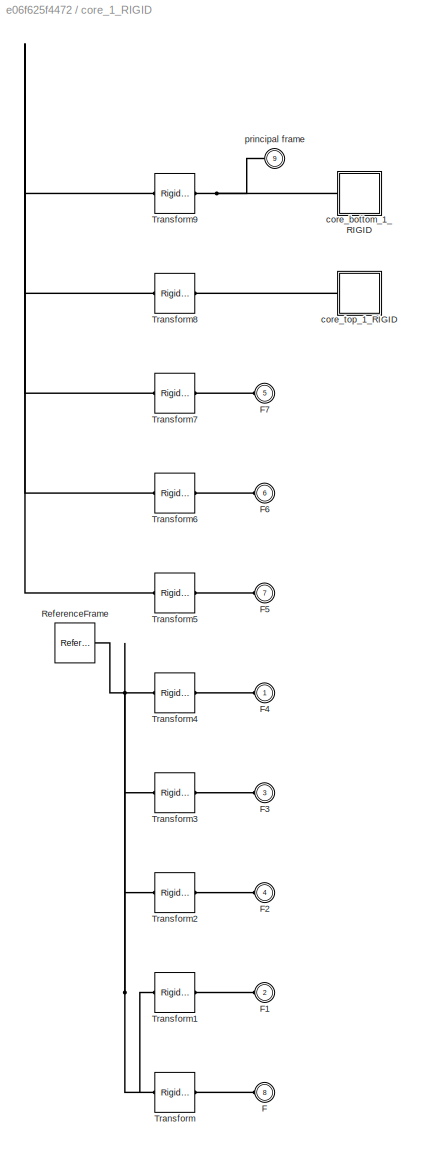
BLOCK [SubSystem] core_1_RIGID
  Ports = [0, 0, 0, 0, 0, 9]
  RequestExecContextInheritance = off
BLOCK [PMIOPort] core_1_RIGID/F
  Port = 8
  Side = Left
BLOCK [PMIOPort] core_1_RIGID/F1
  Port = 2
  Side = Left
BLOCK [PMIOPort] core_1_RIGID/F2
  Port = 4
  Side = Left
BLOCK [PMIOPort] core_1_RIGID/F3
  Port = 3
  Side = Left
BLOCK [PMIOPort] core_1_RIGID/F4
  Side = Left
BLOCK [PMIOPort] core_1_RIGID/F5
  Port = 7
  Side = Left
BLOCK [PMIOPort] core_1_RIGID/F6
  Port = 6
  Side = Left
BLOCK [PMIOPort] core_1_RIGID/F7
  Port = 5
  Side = Left
BLOCK [Reference] core_1_RIGID/ReferenceFrame  REF=sm_lib/Frames and
Transforms/Reference
Frame
  Ports = [0, 0, 0, 0, 0, 0, 1]
  SourceBlock = sm_lib/Frames and\nTransforms/Reference\nFrame
  SourceProductBaseCode = MS
  SourceType = Reference\nFrame
BLOCK [Reference] core_1_RIGID/Transform  REF=sm_lib/Frames and
Transforms/Rigid
Transform
  Ports = [0, 0, 0, 0, 0, 1, 1]
  SourceBlock = sm_lib/Frames and\nTransforms/Rigid\nTransform
  SourceProductBaseCode = MS
  SourceType = Rigid\nTransform
BLOCK [Reference] core_1_RIGID/Transform1  REF=sm_lib/Frames and
Transforms/Rigid
Transform
  Ports = [0, 0, 0, 0, 0, 1, 1]
  SourceBlock = sm_lib/Frames and\nTransforms/Rigid\nTransform
  SourceProductBaseCode = MS
  SourceType = Rigid\nTransform
BLOCK [Reference] core_1_RIGID/Transform2  REF=sm_lib/Frames and
Transforms/Rigid
Transform
  Ports = [0, 0, 0, 0, 0, 1, 1]
  SourceBlock = sm_lib/Frames and\nTransforms/Rigid\nTransform
  SourceProductBaseCode = MS
  SourceType = Rigid\nTransform
BLOCK [Reference] core_1_RIGID/Transform3  REF=sm_lib/Frames and
Transforms/Rigid
Transform
  Ports = [0, 0, 0, 0, 0, 1, 1]
  SourceBlock = sm_lib/Frames and\nTransforms/Rigid\nTransform
  SourceProductBaseCode = MS
  SourceType = Rigid\nTransform
BLOCK [Reference] core_1_RIGID/Transform4  REF=sm_lib/Frames and
Transforms/Rigid
Transform
  Ports = [0, 0, 0, 0, 0, 1, 1]
  SourceBlock = sm_lib/Frames and\nTransforms/Rigid\nTransform
  SourceProductBaseCode = MS
  SourceType = Rigid\nTransform
BLOCK [Reference] core_1_RIGID/Transform5  REF=sm_lib/Frames and
Transforms/Rigid
Transform
  Ports = [0, 0, 0, 0, 0, 1, 1]
  SourceBlock = sm_lib/Frames and\nTransforms/Rigid\nTransform
  SourceProductBaseCode = MS
  SourceType = Rigid\nTransform
BLOCK [Reference] core_1_RIGID/Transform6  REF=sm_lib/Frames and
Transforms/Rigid
Transform
  Ports = [0, 0, 0, 0, 0, 1, 1]
  SourceBlock = sm_lib/Frames and\nTransforms/Rigid\nTransform
  SourceProductBaseCode = MS
  SourceType = Rigid\nTransform
BLOCK [Reference] core_1_RIGID/Transform7  REF=sm_lib/Frames and
Transforms/Rigid
Transform
  Ports = [0, 0, 0, 0, 0, 1, 1]
  SourceBlock = sm_lib/Frames and\nTransforms/Rigid\nTransform
  SourceProductBaseCode = MS
  SourceType = Rigid\nTransform
BLOCK [Reference] core_1_RIGID/Transform8  REF=sm_lib/Frames and
Transforms/Rigid
Transform
  Ports = [0, 0, 0, 0, 0, 1, 1]
  SourceBlock = sm_lib/Frames and\nTransforms/Rigid\nTransform
  SourceProductBaseCode = MS
  SourceType = Rigid\nTransform
BLOCK [Reference] core_1_RIGID/Transform9  REF=sm_lib/Frames and
Transforms/Rigid
Transform
  Ports = [0, 0, 0, 0, 0, 1, 1]
  SourceBlock = sm_lib/Frames and\nTransforms/Rigid\nTransform
  SourceProductBaseCode = MS
  SourceType = Rigid\nTransform
BLOCK [SubSystem] core_1_RIGID/core_bottom_1_RIGID
  Ports = [0, 0, 0, 0, 0, 1]
  RequestExecContextInheritance = off
BLOCK [Reference] core_1_RIGID/core_bottom_1_RIGID/Band-Limited White Noise  REF=simulink/Sources/Band-Limited
White Noise
  Ports = [0, 1]
  SourceBlock = simulink/Sources/Band-Limited\nWhite Noise
  SourceProductBaseCode = SL
  SourceType = Band-Limited White Noise.
BLOCK [Reference] core_1_RIGID/core_bottom_1_RIGID/Band-Limited White Noise1  REF=simulink/Sources/Band-Limited
White Noise
  Ports = [0, 1]
  SourceBlock = simulink/Sources/Band-Limited\nWhite Noise
  SourceProductBaseCode = SL
  SourceType = Band-Limited White Noise.
BLOCK [Reference] core_1_RIGID/core_bottom_1_RIGID/Band-Limited White Noise2  REF=simulink/Sources/Band-Limited
White Noise
  Ports = [0, 1]
  SourceBlock = simulink/Sources/Band-Limited\nWhite Noise
  SourceProductBaseCode = SL
  SourceType = Band-Limited White Noise.
BLOCK [Reference] core_1_RIGID/core_bottom_1_RIGID/Band-Limited White Noise3  REF=simulink/Sources/Band-Limited
White Noise
  Ports = [0, 1]
  SourceBlock = simulink/Sources/Band-Limited\nWhite Noise
  SourceProductBaseCode = SL
  SourceType = Band-Limited White Noise.
BLOCK [Reference] core_1_RIGID/core_bottom_1_RIGID/Band-Limited White Noise4  REF=simulink/Sources/Band-Limited
White Noise
  Ports = [0, 1]
  SourceBlock = simulink/Sources/Band-Limited\nWhite Noise
  SourceProductBaseCode = SL
  SourceType = Band-Limited White Noise.
BLOCK [Reference] core_1_RIGID/core_bottom_1_RIGID/Band-Limited White Noise5  REF=simulink/Sources/Band-Limited
White Noise
  Ports = [0, 1]
  SourceBlock = simulink/Sources/Band-Limited\nWhite Noise
  SourceProductBaseCode = SL
  SourceType = Band-Limited White Noise.
BLOCK [Reference] core_1_RIGID/core_bottom_1_RIGID/External Force and Torque  REF=sm_lib/Forces and
Torques/External Force
and Torque
  Ports = [0, 0, 0, 0, 0, 2, 1]
  SourceBlock = sm_lib/Forces and\nTorques/External Force\nand Torque
  SourceProductBaseCode = MS
  SourceType = External Force\nand Torque
BLOCK [PMIOPort] core_1_RIGID/core_bottom_1_RIGID/F
  Side = Left
BLOCK [Mux] core_1_RIGID/core_bottom_1_RIGID/Mux
  DisplayOption = bar
  Inputs = 3
  Ports = [3, 1]
BLOCK [Mux] core_1_RIGID/core_bottom_1_RIGID/Mux1
  DisplayOption = bar
  Inputs = 3
  Ports = [3, 1]
BLOCK [Reference] core_1_RIGID/core_bottom_1_RIGID/ReferenceFrame  REF=sm_lib/Frames and
Transforms/Reference
Frame
  Ports = [0, 0, 0, 0, 0, 0, 1]
  SourceBlock = sm_lib/Frames and\nTransforms/Reference\nFrame
  SourceProductBaseCode = MS
  SourceType = Reference\nFrame
BLOCK [Scope] core_1_RIGID/core_bottom_1_RIGID/Scope1
  Floating = off
  NumInputPorts = 1
  Ports = [1]
  ScopeSpecificationString = Simulink.scopes.TimeScopeBlockCfg('CurrentConfiguration', extmgr.ConfigurationSet(extmgr.Configuration('Core','General UI',true),extmgr.Configuration('Core','Source UI',true),extmgr.Configuration('Sources','WiredSimulink',true,'DataLoggingVariableName','ScopeData1'),extmgr.Configuration('Visuals','Time Domain',true,'SerializedDisplays',{struct('MinYLimReal','-550.14944','MaxYLimReal','61.1363','YL...<+1719ch>
BLOCK [Reference] core_1_RIGID/core_bottom_1_RIGID/Simulink-PS Converter  REF=nesl_utility/Simulink-PS
Converter
  Ports = [1, 0, 0, 0, 0, 0, 1]
  SourceBlock = nesl_utility/Simulink-PS\nConverter
  SourceProductBaseCode = SS
  SourceType = Simulink-PS\nConverter
BLOCK [Reference] core_1_RIGID/core_bottom_1_RIGID/Simulink-PS Converter1  REF=nesl_utility/Simulink-PS
Converter
  Ports = [1, 0, 0, 0, 0, 0, 1]
  SourceBlock = nesl_utility/Simulink-PS\nConverter
  SourceProductBaseCode = SS
  SourceType = Simulink-PS\nConverter
BLOCK [Reference] core_1_RIGID/core_bottom_1_RIGID/Solid  REF=sm_lib/Body Elements/File Solid
  Ports = [0, 0, 0, 0, 0, 0, 1]
  SourceBlock = sm_lib/Body Elements/File Solid
  SourceProductBaseCode = MS
  SourceType = File Solid
BLOCK [SubSystem] core_1_RIGID/core_top_1_RIGID
  Ports = [0, 0, 0, 0, 0, 1]
  RequestExecContextInheritance = off
BLOCK [PMIOPort] core_1_RIGID/core_top_1_RIGID/F
  Side = Left
BLOCK [Reference] core_1_RIGID/core_top_1_RIGID/ReferenceFrame  REF=sm_lib/Frames and
Transforms/Reference
Frame
  Ports = [0, 0, 0, 0, 0, 0, 1]
  SourceBlock = sm_lib/Frames and\nTransforms/Reference\nFrame
  SourceProductBaseCode = MS
  SourceType = Reference\nFrame
BLOCK [Reference] core_1_RIGID/core_top_1_RIGID/Solid  REF=sm_lib/Body Elements/File Solid
  Ports = [0, 0, 0, 0, 0, 0, 1]
  SourceBlock = sm_lib/Body Elements/File Solid
  SourceProductBaseCode = MS
  SourceType = File Solid
BLOCK [PMIOPort] core_1_RIGID/principal frame
  Port = 9
  Side = Left
BLOCK [SubSystem] elp_camera_1_RIGID
  Ports = [0, 0, 0, 0, 0, 3]
  RequestExecContextInheritance = off
BLOCK [PMIOPort] elp_camera_1_RIGID/F
  Port = 3
  Side = Left
BLOCK [PMIOPort] elp_camera_1_RIGID/F1
  Side = Left
BLOCK [PMIOPort] elp_camera_1_RIGID/F2
  Port = 2
  Side = Left
BLOCK [Reference] elp_camera_1_RIGID/ReferenceFrame  REF=sm_lib/Frames and
Transforms/Reference
Frame
  Ports = [0, 0, 0, 0, 0, 0, 1]
  SourceBlock = sm_lib/Frames and\nTransforms/Reference\nFrame
  SourceProductBaseCode = MS
  SourceType = Reference\nFrame
BLOCK [Reference] elp_camera_1_RIGID/Solid  REF=sm_lib/Body Elements/File Solid
  Ports = [0, 0, 0, 0, 0, 0, 1]
  SourceBlock = sm_lib/Body Elements/File Solid
  SourceProductBaseCode = MS
  SourceType = File Solid
BLOCK [Reference] elp_camera_1_RIGID/Transform  REF=sm_lib/Frames and
Transforms/Rigid
Transform
  Ports = [0, 0, 0, 0, 0, 1, 1]
  SourceBlock = sm_lib/Frames and\nTransforms/Rigid\nTransform
  SourceProductBaseCode = MS
  SourceType = Rigid\nTransform
BLOCK [Reference] elp_camera_1_RIGID/Transform1  REF=sm_lib/Frames and
Transforms/Rigid
Transform
  Ports = [0, 0, 0, 0, 0, 1, 1]
  SourceBlock = sm_lib/Frames and\nTransforms/Rigid\nTransform
  SourceProductBaseCode = MS
  SourceType = Rigid\nTransform
BLOCK [SubSystem] lipo_baterry_1_RIGID
  Ports = [0, 0, 0, 0, 0, 1]
  RequestExecContextInheritance = off
BLOCK [PMIOPort] lipo_baterry_1_RIGID/F
  Side = Left
BLOCK [Reference] lipo_baterry_1_RIGID/ReferenceFrame  REF=sm_lib/Frames and
Transforms/Reference
Frame
  Ports = [0, 0, 0, 0, 0, 0, 1]
  SourceBlock = sm_lib/Frames and\nTransforms/Reference\nFrame
  SourceProductBaseCode = MS
  SourceType = Reference\nFrame
BLOCK [Reference] lipo_baterry_1_RIGID/Solid  REF=sm_lib/Body Elements/File Solid
  Ports = [0, 0, 0, 0, 0, 0, 1]
  SourceBlock = sm_lib/Body Elements/File Solid
  SourceProductBaseCode = MS
  SourceType = File Solid
BLOCK [Reference] lipo_baterry_1_RIGID/Transform  REF=sm_lib/Frames and
Transforms/Rigid
Transform
  Ports = [0, 0, 0, 0, 0, 1, 1]
  SourceBlock = sm_lib/Frames and\nTransforms/Rigid\nTransform
  SourceProductBaseCode = MS
  SourceType = Rigid\nTransform
BLOCK [SubSystem] motherboard_1_RIGID
  Ports = [0, 0, 0, 0, 0, 1]
  RequestExecContextInheritance = off
BLOCK [PMIOPort] motherboard_1_RIGID/F
  Side = Left
BLOCK [Reference] motherboard_1_RIGID/ReferenceFrame  REF=sm_lib/Frames and
Transforms/Reference
Frame
  Ports = [0, 0, 0, 0, 0, 0, 1]
  SourceBlock = sm_lib/Frames and\nTransforms/Reference\nFrame
  SourceProductBaseCode = MS
  SourceType = Reference\nFrame
BLOCK [Reference] motherboard_1_RIGID/Solid  REF=sm_lib/Body Elements/File Solid
  Ports = [0, 0, 0, 0, 0, 0, 1]
  SourceBlock = sm_lib/Body Elements/File Solid
  SourceProductBaseCode = MS
  SourceType = File Solid
BLOCK [Reference] motherboard_1_RIGID/Transform  REF=sm_lib/Frames and
Transforms/Rigid
Transform
  Ports = [0, 0, 0, 0, 0, 1, 1]
  SourceBlock = sm_lib/Frames and\nTransforms/Rigid\nTransform
  SourceProductBaseCode = MS
  SourceType = Rigid\nTransform
BLOCK [Outport] pitch
BLOCK [Outport] roll
  Port = 2
LINE Demux:1 -> pitch:1
LINE Demux:3 -> roll:1
LINE Gain2:1 -> arm_3_RIGID:1
LINE Gain3:1 -> arm_1_RIGID:1
LINE Gain4:1 -> arm_2_RIGID:1
LINE Gain5:1 -> arm_4_RIGID:1
NET H:1 -> Sum1:1, Sum2:1, Sum3:1, Sum:1
NET P:1 -> Sum4:2, Sum5:2, Sum6:2, Sum7:2
LINE PS-Simulink Converter:1 -> Quaternions to Rodrigues:1
LINE Product1:1 -> Gain3:1
LINE Product2:1 -> Gain4:1
LINE Product3:1 -> Gain5:1
LINE Product:1 -> Gain2:1
NET Quaternions to Rodrigues:1 -> Demux:1, Scope:1
NET R:1 -> Sum1:2, Sum2:2, Sum3:2, Sum:2
NET Saturation1:1 -> Product2:1, Product2:2
NET Saturation2:1 -> Product3:1, Product3:2
NET Saturation3:1 -> Product:1, Product:2
NET Saturation:1 -> Product1:1, Product1:2
LINE Sum10:1 -> Saturation1:1
LINE Sum11:1 -> Saturation2:1
LINE Sum1:1 -> Sum5:1
LINE Sum2:1 -> Sum6:1
LINE Sum3:1 -> Sum7:1
LINE Sum4:1 -> Sum8:1
LINE Sum5:1 -> Sum9:1
LINE Sum6:1 -> Sum10:1
LINE Sum7:1 -> Sum11:1
LINE Sum8:1 -> Saturation3:1
LINE Sum9:1 -> Saturation:1
LINE Sum:1 -> Sum4:1
NET Y:1 -> Sum10:2, Sum11:2, Sum8:2, Sum9:2
LINE arm_1_RIGID/APC_12x6_EP_Prop_1_RIGID/Gain:1 -> arm_1_RIGID/APC_12x6_EP_Prop_1_RIGID/Simulink-PS Converter:1
LINE arm_1_RIGID/APC_12x6_EP_Prop_1_RIGID/Input:1 -> arm_1_RIGID/APC_12x6_EP_Prop_1_RIGID/Gain:1
LINE arm_1_RIGID/force:1 -> arm_1_RIGID/APC_12x6_EP_Prop_1_RIGID:1
LINE arm_2_RIGID/APC_12x6_EP_Prop_1_RIGID/Gain:1 -> arm_2_RIGID/APC_12x6_EP_Prop_1_RIGID/Simulink-PS Converter:1
LINE arm_2_RIGID/APC_12x6_EP_Prop_1_RIGID/Input:1 -> arm_2_RIGID/APC_12x6_EP_Prop_1_RIGID/Gain:1
LINE arm_2_RIGID/force:1 -> arm_2_RIGID/APC_12x6_EP_Prop_1_RIGID:1
LINE arm_3_RIGID/APC_12x6_EP_Prop_1_RIGID/Gain:1 -> arm_3_RIGID/APC_12x6_EP_Prop_1_RIGID/Simulink-PS Converter:1
LINE arm_3_RIGID/APC_12x6_EP_Prop_1_RIGID/Input:1 -> arm_3_RIGID/APC_12x6_EP_Prop_1_RIGID/Gain:1
LINE arm_3_RIGID/force:1 -> arm_3_RIGID/APC_12x6_EP_Prop_1_RIGID:1
LINE arm_4_RIGID/APC_12x6_EP_Prop_1_RIGID/Gain:1 -> arm_4_RIGID/APC_12x6_EP_Prop_1_RIGID/Simulink-PS Converter:1
LINE arm_4_RIGID/APC_12x6_EP_Prop_1_RIGID/Input:1 -> arm_4_RIGID/APC_12x6_EP_Prop_1_RIGID/Gain:1
LINE arm_4_RIGID/force:1 -> arm_4_RIGID/APC_12x6_EP_Prop_1_RIGID:1
LINE core_1_RIGID/core_bottom_1_RIGID/Band-Limited White Noise1:1 -> core_1_RIGID/core_bottom_1_RIGID/Mux:2
LINE core_1_RIGID/core_bottom_1_RIGID/Band-Limited White Noise2:1 -> core_1_RIGID/core_bottom_1_RIGID/Mux:3
LINE core_1_RIGID/core_bottom_1_RIGID/Band-Limited White Noise3:1 -> core_1_RIGID/core_bottom_1_RIGID/Mux1:1
LINE core_1_RIGID/core_bottom_1_RIGID/Band-Limited White Noise4:1 -> core_1_RIGID/core_bottom_1_RIGID/Mux1:2
LINE core_1_RIGID/core_bottom_1_RIGID/Band-Limited White Noise5:1 -> core_1_RIGID/core_bottom_1_RIGID/Mux1:3
LINE core_1_RIGID/core_bottom_1_RIGID/Band-Limited White Noise:1 -> core_1_RIGID/core_bottom_1_RIGID/Mux:1
LINE core_1_RIGID/core_bottom_1_RIGID/Mux1:1 -> core_1_RIGID/core_bottom_1_RIGID/Simulink-PS Converter1:1
LINE core_1_RIGID/core_bottom_1_RIGID/Mux:1 -> core_1_RIGID/core_bottom_1_RIGID/Simulink-PS Converter:1
PLINE Cylindrical:LConn1 -- adaptador_elp_2_RIGID:RConn1
PLINE Cylindrical:RConn1 -- core_1_RIGID:LConn3
PNET net1: MechanismConfiguration:RConn1 -- Solver Configuration:RConn1 -- Transform Sensor:LConn1 -- Transform:LConn1 -- World:RConn1
PLINE PS-Simulink Converter:LConn1 -- Transform Sensor:RConn2
PLINE Revolute:LConn1 -- adaptador_elp_1_RIGID:RConn1
PLINE Revolute:RConn1 -- core_1_RIGID:LConn4
PLINE SixDOF:LConn1 -- Transform:RConn1
PLINE SixDOF:RConn1 -- elp_camera_1_RIGID:LConn2
PLINE Transform Sensor:RConn1 -- core_1_RIGID:LConn9
PLINE adaptador_elp_1_RIGID/F1:RConn1 -- adaptador_elp_1_RIGID/Transform1:RConn1
PLINE adaptador_elp_1_RIGID/F:RConn1 -- adaptador_elp_1_RIGID/Transform:RConn1
PNET net2: adaptador_elp_1_RIGID/ReferenceFrame:RConn1 -- adaptador_elp_1_RIGID/Solid:RConn1 -- adaptador_elp_1_RIGID/Transform1:LConn1 -- adaptador_elp_1_RIGID/Transform:LConn1
PLINE adaptador_elp_1_RIGID:LConn1 -- elp_camera_1_RIGID:LConn3
PLINE adaptador_elp_2_RIGID/F1:RConn1 -- adaptador_elp_2_RIGID/Transform1:RConn1
PLINE adaptador_elp_2_RIGID/F:RConn1 -- adaptador_elp_2_RIGID/Transform:RConn1
PNET net3: adaptador_elp_2_RIGID/ReferenceFrame:RConn1 -- adaptador_elp_2_RIGID/Solid:RConn1 -- adaptador_elp_2_RIGID/Transform1:LConn1 -- adaptador_elp_2_RIGID/Transform:LConn1
PLINE adaptador_elp_2_RIGID:LConn1 -- elp_camera_1_RIGID:LConn1
PLINE arm_1_RIGID/APC_12x6_EP_Prop_1_RIGID/External Force and Torque:LConn1 -- arm_1_RIGID/APC_12x6_EP_Prop_1_RIGID/Simulink-PS Converter:RConn1
PNET net4: arm_1_RIGID/APC_12x6_EP_Prop_1_RIGID/External Force and Torque:RConn1 -- arm_1_RIGID/APC_12x6_EP_Prop_1_RIGID/F:RConn1 -- arm_1_RIGID/APC_12x6_EP_Prop_1_RIGID/ReferenceFrame:RConn1 -- arm_1_RIGID/APC_12x6_EP_Prop_1_RIGID/Solid:RConn1
PLINE arm_1_RIGID/APC_12x6_EP_Prop_1_RIGID:LConn1 -- arm_1_RIGID/Transform3:RConn1
PLINE arm_1_RIGID/F:RConn1 -- arm_1_RIGID/Transform:RConn1
PNET net5: arm_1_RIGID/ReferenceFrame:RConn1 -- arm_1_RIGID/T_Motor_MN3110_1_RIGID:RConn1 -- arm_1_RIGID/Transform1:LConn1 -- arm_1_RIGID/Transform2:LConn1 -- arm_1_RIGID/Transform3:LConn1 -- arm_1_RIGID/Transform4:LConn1 -- arm_1_RIGID/Transform5:LConn1 -- arm_1_RIGID/Transform6:LConn1 -- arm_1_RIGID/Transform:LConn1
PLINE arm_1_RIGID/T_Motor_MN3110_1_RIGID/F:RConn1 -- arm_1_RIGID/T_Motor_MN3110_1_RIGID/Transform:LConn1
PNET net6: arm_1_RIGID/T_Motor_MN3110_1_RIGID/ReferenceFrame:RConn1 -- arm_1_RIGID/T_Motor_MN3110_1_RIGID/T_Motor_MN3110_step_1_RIGID:LConn1 -- arm_1_RIGID/T_Motor_MN3110_1_RIGID/Transform:RConn1
PLINE arm_1_RIGID/T_Motor_MN3110_1_RIGID/T_Motor_MN3110_step_1_RIGID/F:RConn1 -- arm_1_RIGID/T_Motor_MN3110_1_RIGID/T_Motor_MN3110_step_1_RIGID/Transform1:LConn1
PNET net7: arm_1_RIGID/T_Motor_MN3110_1_RIGID/T_Motor_MN3110_step_1_RIGID/MN3110_step_1_RIGID/F:RConn1 -- arm_1_RIGID/T_Motor_MN3110_1_RIGID/T_Motor_MN3110_step_1_RIGID/MN3110_step_1_RIGID/ReferenceFrame:RConn1 -- arm_1_RIGID/T_Motor_MN3110_1_RIGID/T_Motor_MN3110_step_1_RIGID/MN3110_step_1_RIGID/Solid:RConn1
PLINE arm_1_RIGID/T_Motor_MN3110_1_RIGID/T_Motor_MN3110_step_1_RIGID/MN3110_step_1_RIGID:LConn1 -- arm_1_RIGID/T_Motor_MN3110_1_RIGID/T_Motor_MN3110_step_1_RIGID/Transform:RConn1
PNET net8: arm_1_RIGID/T_Motor_MN3110_1_RIGID/T_Motor_MN3110_step_1_RIGID/ReferenceFrame:RConn1 -- arm_1_RIGID/T_Motor_MN3110_1_RIGID/T_Motor_MN3110_step_1_RIGID/Transform1:RConn1 -- arm_1_RIGID/T_Motor_MN3110_1_RIGID/T_Motor_MN3110_step_1_RIGID/Transform:LConn1
PLINE arm_1_RIGID/Transform1:RConn1 -- arm_1_RIGID/soporte_protector_1_RIGID:LConn1
PLINE arm_1_RIGID/Transform2:RConn1 -- arm_1_RIGID/protector_1_RIGID:LConn1
PLINE arm_1_RIGID/Transform4:RConn1 -- arm_1_RIGID/soporte_protector_2_RIGID:LConn1
PLINE arm_1_RIGID/Transform5:RConn1 -- arm_1_RIGID/arm1_1_RIGID:LConn1
PLINE arm_1_RIGID/Transform6:RConn1 -- arm_1_RIGID/arm2_1_RIGID:LConn1
PNET net9: arm_1_RIGID/arm1_1_RIGID/F:RConn1 -- arm_1_RIGID/arm1_1_RIGID/ReferenceFrame:RConn1 -- arm_1_RIGID/arm1_1_RIGID/Solid:RConn1
PNET net10: arm_1_RIGID/arm2_1_RIGID/F:RConn1 -- arm_1_RIGID/arm2_1_RIGID/ReferenceFrame:RConn1 -- arm_1_RIGID/arm2_1_RIGID/Solid:RConn1
PNET net11: arm_1_RIGID/protector_1_RIGID/F:RConn1 -- arm_1_RIGID/protector_1_RIGID/ReferenceFrame:RConn1 -- arm_1_RIGID/protector_1_RIGID/Solid:RConn1
PNET net12: arm_1_RIGID/soporte_protector_1_RIGID/F:RConn1 -- arm_1_RIGID/soporte_protector_1_RIGID/ReferenceFrame:RConn1 -- arm_1_RIGID/soporte_protector_1_RIGID/Solid:RConn1
PNET net13: arm_1_RIGID/soporte_protector_2_RIGID/F:RConn1 -- arm_1_RIGID/soporte_protector_2_RIGID/ReferenceFrame:RConn1 -- arm_1_RIGID/soporte_protector_2_RIGID/Solid:RConn1
PLINE arm_1_RIGID:LConn1 -- core_1_RIGID:LConn1
PLINE arm_2_RIGID/APC_12x6_EP_Prop_1_RIGID/External Force and Torque:LConn1 -- arm_2_RIGID/APC_12x6_EP_Prop_1_RIGID/Simulink-PS Converter:RConn1
PNET net14: arm_2_RIGID/APC_12x6_EP_Prop_1_RIGID/External Force and Torque:RConn1 -- arm_2_RIGID/APC_12x6_EP_Prop_1_RIGID/F:RConn1 -- arm_2_RIGID/APC_12x6_EP_Prop_1_RIGID/ReferenceFrame:RConn1 -- arm_2_RIGID/APC_12x6_EP_Prop_1_RIGID/Solid:RConn1
PLINE arm_2_RIGID/APC_12x6_EP_Prop_1_RIGID:LConn1 -- arm_2_RIGID/Transform3:RConn1
PLINE arm_2_RIGID/F:RConn1 -- arm_2_RIGID/Transform:RConn1
PNET net15: arm_2_RIGID/ReferenceFrame:RConn1 -- arm_2_RIGID/T_Motor_MN3110_1_RIGID:RConn1 -- arm_2_RIGID/Transform1:LConn1 -- arm_2_RIGID/Transform2:LConn1 -- arm_2_RIGID/Transform3:LConn1 -- arm_2_RIGID/Transform4:LConn1 -- arm_2_RIGID/Transform5:LConn1 -- arm_2_RIGID/Transform6:LConn1 -- arm_2_RIGID/Transform:LConn1
PLINE arm_2_RIGID/T_Motor_MN3110_1_RIGID/F:RConn1 -- arm_2_RIGID/T_Motor_MN3110_1_RIGID/Transform:LConn1
PNET net16: arm_2_RIGID/T_Motor_MN3110_1_RIGID/ReferenceFrame:RConn1 -- arm_2_RIGID/T_Motor_MN3110_1_RIGID/T_Motor_MN3110_step_1_RIGID:LConn1 -- arm_2_RIGID/T_Motor_MN3110_1_RIGID/Transform:RConn1
PLINE arm_2_RIGID/T_Motor_MN3110_1_RIGID/T_Motor_MN3110_step_1_RIGID/F:RConn1 -- arm_2_RIGID/T_Motor_MN3110_1_RIGID/T_Motor_MN3110_step_1_RIGID/Transform1:LConn1
PNET net17: arm_2_RIGID/T_Motor_MN3110_1_RIGID/T_Motor_MN3110_step_1_RIGID/MN3110_step_1_RIGID/F:RConn1 -- arm_2_RIGID/T_Motor_MN3110_1_RIGID/T_Motor_MN3110_step_1_RIGID/MN3110_step_1_RIGID/ReferenceFrame:RConn1 -- arm_2_RIGID/T_Motor_MN3110_1_RIGID/T_Motor_MN3110_step_1_RIGID/MN3110_step_1_RIGID/Solid:RConn1
PLINE arm_2_RIGID/T_Motor_MN3110_1_RIGID/T_Motor_MN3110_step_1_RIGID/MN3110_step_1_RIGID:LConn1 -- arm_2_RIGID/T_Motor_MN3110_1_RIGID/T_Motor_MN3110_step_1_RIGID/Transform:RConn1
PNET net18: arm_2_RIGID/T_Motor_MN3110_1_RIGID/T_Motor_MN3110_step_1_RIGID/ReferenceFrame:RConn1 -- arm_2_RIGID/T_Motor_MN3110_1_RIGID/T_Motor_MN3110_step_1_RIGID/Transform1:RConn1 -- arm_2_RIGID/T_Motor_MN3110_1_RIGID/T_Motor_MN3110_step_1_RIGID/Transform:LConn1
PLINE arm_2_RIGID/Transform1:RConn1 -- arm_2_RIGID/soporte_protector_1_RIGID:LConn1
PLINE arm_2_RIGID/Transform2:RConn1 -- arm_2_RIGID/protector_1_RIGID:LConn1
PLINE arm_2_RIGID/Transform4:RConn1 -- arm_2_RIGID/soporte_protector_2_RIGID:LConn1
PLINE arm_2_RIGID/Transform5:RConn1 -- arm_2_RIGID/arm1_1_RIGID:LConn1
PLINE arm_2_RIGID/Transform6:RConn1 -- arm_2_RIGID/arm2_1_RIGID:LConn1
PNET net19: arm_2_RIGID/arm1_1_RIGID/F:RConn1 -- arm_2_RIGID/arm1_1_RIGID/ReferenceFrame:RConn1 -- arm_2_RIGID/arm1_1_RIGID/Solid:RConn1
PNET net20: arm_2_RIGID/arm2_1_RIGID/F:RConn1 -- arm_2_RIGID/arm2_1_RIGID/ReferenceFrame:RConn1 -- arm_2_RIGID/arm2_1_RIGID/Solid:RConn1
PNET net21: arm_2_RIGID/protector_1_RIGID/F:RConn1 -- arm_2_RIGID/protector_1_RIGID/ReferenceFrame:RConn1 -- arm_2_RIGID/protector_1_RIGID/Solid:RConn1
PNET net22: arm_2_RIGID/soporte_protector_1_RIGID/F:RConn1 -- arm_2_RIGID/soporte_protector_1_RIGID/ReferenceFrame:RConn1 -- arm_2_RIGID/soporte_protector_1_RIGID/Solid:RConn1
PNET net23: arm_2_RIGID/soporte_protector_2_RIGID/F:RConn1 -- arm_2_RIGID/soporte_protector_2_RIGID/ReferenceFrame:RConn1 -- arm_2_RIGID/soporte_protector_2_RIGID/Solid:RConn1
PLINE arm_2_RIGID:LConn1 -- core_1_RIGID:LConn7
PLINE arm_3_RIGID/APC_12x6_EP_Prop_1_RIGID/External Force and Torque:LConn1 -- arm_3_RIGID/APC_12x6_EP_Prop_1_RIGID/Simulink-PS Converter:RConn1
PNET net24: arm_3_RIGID/APC_12x6_EP_Prop_1_RIGID/External Force and Torque:RConn1 -- arm_3_RIGID/APC_12x6_EP_Prop_1_RIGID/F:RConn1 -- arm_3_RIGID/APC_12x6_EP_Prop_1_RIGID/ReferenceFrame:RConn1 -- arm_3_RIGID/APC_12x6_EP_Prop_1_RIGID/Solid:RConn1
PLINE arm_3_RIGID/APC_12x6_EP_Prop_1_RIGID:LConn1 -- arm_3_RIGID/Transform3:RConn1
PLINE arm_3_RIGID/F:RConn1 -- arm_3_RIGID/Transform:RConn1
PNET net25: arm_3_RIGID/ReferenceFrame:RConn1 -- arm_3_RIGID/T_Motor_MN3110_1_RIGID:RConn1 -- arm_3_RIGID/Transform1:LConn1 -- arm_3_RIGID/Transform2:LConn1 -- arm_3_RIGID/Transform3:LConn1 -- arm_3_RIGID/Transform4:LConn1 -- arm_3_RIGID/Transform5:LConn1 -- arm_3_RIGID/Transform6:LConn1 -- arm_3_RIGID/Transform:LConn1
PLINE arm_3_RIGID/T_Motor_MN3110_1_RIGID/F:RConn1 -- arm_3_RIGID/T_Motor_MN3110_1_RIGID/Transform:LConn1
PNET net26: arm_3_RIGID/T_Motor_MN3110_1_RIGID/ReferenceFrame:RConn1 -- arm_3_RIGID/T_Motor_MN3110_1_RIGID/T_Motor_MN3110_step_1_RIGID:LConn1 -- arm_3_RIGID/T_Motor_MN3110_1_RIGID/Transform:RConn1
PLINE arm_3_RIGID/T_Motor_MN3110_1_RIGID/T_Motor_MN3110_step_1_RIGID/F:RConn1 -- arm_3_RIGID/T_Motor_MN3110_1_RIGID/T_Motor_MN3110_step_1_RIGID/Transform1:LConn1
PNET net27: arm_3_RIGID/T_Motor_MN3110_1_RIGID/T_Motor_MN3110_step_1_RIGID/MN3110_step_1_RIGID/F:RConn1 -- arm_3_RIGID/T_Motor_MN3110_1_RIGID/T_Motor_MN3110_step_1_RIGID/MN3110_step_1_RIGID/ReferenceFrame:RConn1 -- arm_3_RIGID/T_Motor_MN3110_1_RIGID/T_Motor_MN3110_step_1_RIGID/MN3110_step_1_RIGID/Solid:RConn1
PLINE arm_3_RIGID/T_Motor_MN3110_1_RIGID/T_Motor_MN3110_step_1_RIGID/MN3110_step_1_RIGID:LConn1 -- arm_3_RIGID/T_Motor_MN3110_1_RIGID/T_Motor_MN3110_step_1_RIGID/Transform:RConn1
PNET net28: arm_3_RIGID/T_Motor_MN3110_1_RIGID/T_Motor_MN3110_step_1_RIGID/ReferenceFrame:RConn1 -- arm_3_RIGID/T_Motor_MN3110_1_RIGID/T_Motor_MN3110_step_1_RIGID/Transform1:RConn1 -- arm_3_RIGID/T_Motor_MN3110_1_RIGID/T_Motor_MN3110_step_1_RIGID/Transform:LConn1
PLINE arm_3_RIGID/Transform1:RConn1 -- arm_3_RIGID/soporte_protector_1_RIGID:LConn1
PLINE arm_3_RIGID/Transform2:RConn1 -- arm_3_RIGID/protector_1_RIGID:LConn1
PLINE arm_3_RIGID/Transform4:RConn1 -- arm_3_RIGID/soporte_protector_2_RIGID:LConn1
PLINE arm_3_RIGID/Transform5:RConn1 -- arm_3_RIGID/arm1_1_RIGID:LConn1
PLINE arm_3_RIGID/Transform6:RConn1 -- arm_3_RIGID/arm2_1_RIGID:LConn1
PNET net29: arm_3_RIGID/arm1_1_RIGID/F:RConn1 -- arm_3_RIGID/arm1_1_RIGID/ReferenceFrame:RConn1 -- arm_3_RIGID/arm1_1_RIGID/Solid:RConn1
PNET net30: arm_3_RIGID/arm2_1_RIGID/F:RConn1 -- arm_3_RIGID/arm2_1_RIGID/ReferenceFrame:RConn1 -- arm_3_RIGID/arm2_1_RIGID/Solid:RConn1
PNET net31: arm_3_RIGID/protector_1_RIGID/F:RConn1 -- arm_3_RIGID/protector_1_RIGID/ReferenceFrame:RConn1 -- arm_3_RIGID/protector_1_RIGID/Solid:RConn1
PNET net32: arm_3_RIGID/soporte_protector_1_RIGID/F:RConn1 -- arm_3_RIGID/soporte_protector_1_RIGID/ReferenceFrame:RConn1 -- arm_3_RIGID/soporte_protector_1_RIGID/Solid:RConn1
PNET net33: arm_3_RIGID/soporte_protector_2_RIGID/F:RConn1 -- arm_3_RIGID/soporte_protector_2_RIGID/ReferenceFrame:RConn1 -- arm_3_RIGID/soporte_protector_2_RIGID/Solid:RConn1
PLINE arm_3_RIGID:LConn1 -- core_1_RIGID:LConn6
PLINE arm_4_RIGID/APC_12x6_EP_Prop_1_RIGID/External Force and Torque:LConn1 -- arm_4_RIGID/APC_12x6_EP_Prop_1_RIGID/Simulink-PS Converter:RConn1
PNET net34: arm_4_RIGID/APC_12x6_EP_Prop_1_RIGID/External Force and Torque:RConn1 -- arm_4_RIGID/APC_12x6_EP_Prop_1_RIGID/F:RConn1 -- arm_4_RIGID/APC_12x6_EP_Prop_1_RIGID/ReferenceFrame:RConn1 -- arm_4_RIGID/APC_12x6_EP_Prop_1_RIGID/Solid:RConn1
PLINE arm_4_RIGID/APC_12x6_EP_Prop_1_RIGID:LConn1 -- arm_4_RIGID/Transform3:RConn1
PLINE arm_4_RIGID/F:RConn1 -- arm_4_RIGID/Transform:RConn1
PNET net35: arm_4_RIGID/ReferenceFrame:RConn1 -- arm_4_RIGID/T_Motor_MN3110_1_RIGID:RConn1 -- arm_4_RIGID/Transform1:LConn1 -- arm_4_RIGID/Transform2:LConn1 -- arm_4_RIGID/Transform3:LConn1 -- arm_4_RIGID/Transform4:LConn1 -- arm_4_RIGID/Transform5:LConn1 -- arm_4_RIGID/Transform6:LConn1 -- arm_4_RIGID/Transform:LConn1
PLINE arm_4_RIGID/T_Motor_MN3110_1_RIGID/F:RConn1 -- arm_4_RIGID/T_Motor_MN3110_1_RIGID/Transform:LConn1
PNET net36: arm_4_RIGID/T_Motor_MN3110_1_RIGID/ReferenceFrame:RConn1 -- arm_4_RIGID/T_Motor_MN3110_1_RIGID/T_Motor_MN3110_step_1_RIGID:LConn1 -- arm_4_RIGID/T_Motor_MN3110_1_RIGID/Transform:RConn1
PLINE arm_4_RIGID/T_Motor_MN3110_1_RIGID/T_Motor_MN3110_step_1_RIGID/F:RConn1 -- arm_4_RIGID/T_Motor_MN3110_1_RIGID/T_Motor_MN3110_step_1_RIGID/Transform1:LConn1
PNET net37: arm_4_RIGID/T_Motor_MN3110_1_RIGID/T_Motor_MN3110_step_1_RIGID/MN3110_step_1_RIGID/F:RConn1 -- arm_4_RIGID/T_Motor_MN3110_1_RIGID/T_Motor_MN3110_step_1_RIGID/MN3110_step_1_RIGID/ReferenceFrame:RConn1 -- arm_4_RIGID/T_Motor_MN3110_1_RIGID/T_Motor_MN3110_step_1_RIGID/MN3110_step_1_RIGID/Solid:RConn1
PLINE arm_4_RIGID/T_Motor_MN3110_1_RIGID/T_Motor_MN3110_step_1_RIGID/MN3110_step_1_RIGID:LConn1 -- arm_4_RIGID/T_Motor_MN3110_1_RIGID/T_Motor_MN3110_step_1_RIGID/Transform:RConn1
PNET net38: arm_4_RIGID/T_Motor_MN3110_1_RIGID/T_Motor_MN3110_step_1_RIGID/ReferenceFrame:RConn1 -- arm_4_RIGID/T_Motor_MN3110_1_RIGID/T_Motor_MN3110_step_1_RIGID/Transform1:RConn1 -- arm_4_RIGID/T_Motor_MN3110_1_RIGID/T_Motor_MN3110_step_1_RIGID/Transform:LConn1
PLINE arm_4_RIGID/Transform1:RConn1 -- arm_4_RIGID/soporte_protector_1_RIGID:LConn1
PLINE arm_4_RIGID/Transform2:RConn1 -- arm_4_RIGID/protector_1_RIGID:LConn1
PLINE arm_4_RIGID/Transform4:RConn1 -- arm_4_RIGID/soporte_protector_2_RIGID:LConn1
PLINE arm_4_RIGID/Transform5:RConn1 -- arm_4_RIGID/arm1_1_RIGID:LConn1
PLINE arm_4_RIGID/Transform6:RConn1 -- arm_4_RIGID/arm2_1_RIGID:LConn1
PNET net39: arm_4_RIGID/arm1_1_RIGID/F:RConn1 -- arm_4_RIGID/arm1_1_RIGID/ReferenceFrame:RConn1 -- arm_4_RIGID/arm1_1_RIGID/Solid:RConn1
PNET net40: arm_4_RIGID/arm2_1_RIGID/F:RConn1 -- arm_4_RIGID/arm2_1_RIGID/ReferenceFrame:RConn1 -- arm_4_RIGID/arm2_1_RIGID/Solid:RConn1
PNET net41: arm_4_RIGID/protector_1_RIGID/F:RConn1 -- arm_4_RIGID/protector_1_RIGID/ReferenceFrame:RConn1 -- arm_4_RIGID/protector_1_RIGID/Solid:RConn1
PNET net42: arm_4_RIGID/soporte_protector_1_RIGID/F:RConn1 -- arm_4_RIGID/soporte_protector_1_RIGID/ReferenceFrame:RConn1 -- arm_4_RIGID/soporte_protector_1_RIGID/Solid:RConn1
PNET net43: arm_4_RIGID/soporte_protector_2_RIGID/F:RConn1 -- arm_4_RIGID/soporte_protector_2_RIGID/ReferenceFrame:RConn1 -- arm_4_RIGID/soporte_protector_2_RIGID/Solid:RConn1
PLINE arm_4_RIGID:LConn1 -- core_1_RIGID:LConn5
PLINE core_1_RIGID/F1:RConn1 -- core_1_RIGID/Transform1:RConn1
PLINE core_1_RIGID/F2:RConn1 -- core_1_RIGID/Transform2:RConn1
PLINE core_1_RIGID/F3:RConn1 -- core_1_RIGID/Transform3:RConn1
PLINE core_1_RIGID/F4:RConn1 -- core_1_RIGID/Transform4:RConn1
PLINE core_1_RIGID/F5:RConn1 -- core_1_RIGID/Transform5:RConn1
PLINE core_1_RIGID/F6:RConn1 -- core_1_RIGID/Transform6:RConn1
PLINE core_1_RIGID/F7:RConn1 -- core_1_RIGID/Transform7:RConn1
PLINE core_1_RIGID/F:RConn1 -- core_1_RIGID/Transform:RConn1
PNET net44: core_1_RIGID/ReferenceFrame:RConn1 -- core_1_RIGID/Transform1:LConn1 -- core_1_RIGID/Transform2:LConn1 -- core_1_RIGID/Transform3:LConn1 -- core_1_RIGID/Transform4:LConn1 -- core_1_RIGID/Transform5:LConn1 -- core_1_RIGID/Transform6:LConn1 -- core_1_RIGID/Transform7:LConn1 -- core_1_RIGID/Transform8:LConn1 -- core_1_RIGID/Transform9:LConn1 -- core_1_RIGID/Transform:LConn1
PLINE core_1_RIGID/Transform8:RConn1 -- core_1_RIGID/core_top_1_RIGID:LConn1
PNET net45: core_1_RIGID/Transform9:RConn1 -- core_1_RIGID/core_bottom_1_RIGID:LConn1 -- core_1_RIGID/principal frame:RConn1
PLINE core_1_RIGID/core_bottom_1_RIGID/External Force and Torque:LConn1 -- core_1_RIGID/core_bottom_1_RIGID/Simulink-PS Converter:RConn1
PLINE core_1_RIGID/core_bottom_1_RIGID/External Force and Torque:LConn2 -- core_1_RIGID/core_bottom_1_RIGID/Simulink-PS Converter1:RConn1
PNET net46: core_1_RIGID/core_bottom_1_RIGID/External Force and Torque:RConn1 -- core_1_RIGID/core_bottom_1_RIGID/F:RConn1 -- core_1_RIGID/core_bottom_1_RIGID/ReferenceFrame:RConn1 -- core_1_RIGID/core_bottom_1_RIGID/Solid:RConn1
PNET net47: core_1_RIGID/core_top_1_RIGID/F:RConn1 -- core_1_RIGID/core_top_1_RIGID/ReferenceFrame:RConn1 -- core_1_RIGID/core_top_1_RIGID/Solid:RConn1
PLINE core_1_RIGID:LConn2 -- motherboard_1_RIGID:LConn1
PLINE core_1_RIGID:LConn8 -- lipo_baterry_1_RIGID:LConn1
PLINE elp_camera_1_RIGID/F1:RConn1 -- elp_camera_1_RIGID/Transform1:RConn1
PNET net48: elp_camera_1_RIGID/F2:RConn1 -- elp_camera_1_RIGID/ReferenceFrame:RConn1 -- elp_camera_1_RIGID/Solid:RConn1 -- elp_camera_1_RIGID/Transform1:LConn1 -- elp_camera_1_RIGID/Transform:LConn1
PLINE elp_camera_1_RIGID/F:RConn1 -- elp_camera_1_RIGID/Transform:RConn1
PLINE lipo_baterry_1_RIGID/F:RConn1 -- lipo_baterry_1_RIGID/Transform:RConn1
PNET net49: lipo_baterry_1_RIGID/ReferenceFrame:RConn1 -- lipo_baterry_1_RIGID/Solid:RConn1 -- lipo_baterry_1_RIGID/Transform:LConn1
PLINE motherboard_1_RIGID/F:RConn1 -- motherboard_1_RIGID/Transform:RConn1
PNET net50: motherboard_1_RIGID/ReferenceFrame:RConn1 -- motherboard_1_RIGID/Solid:RConn1 -- motherboard_1_RIGID/Transform:LConn1
note: NET lines group one-source signal fan-out (src -> all destinations, sorted); 1:1 wires keep LINE; PNET lines group multi-terminal physical nets as a canonical sorted terminal list (undirected conserving connections); 2-terminal nets keep the pairwise PLINE form
